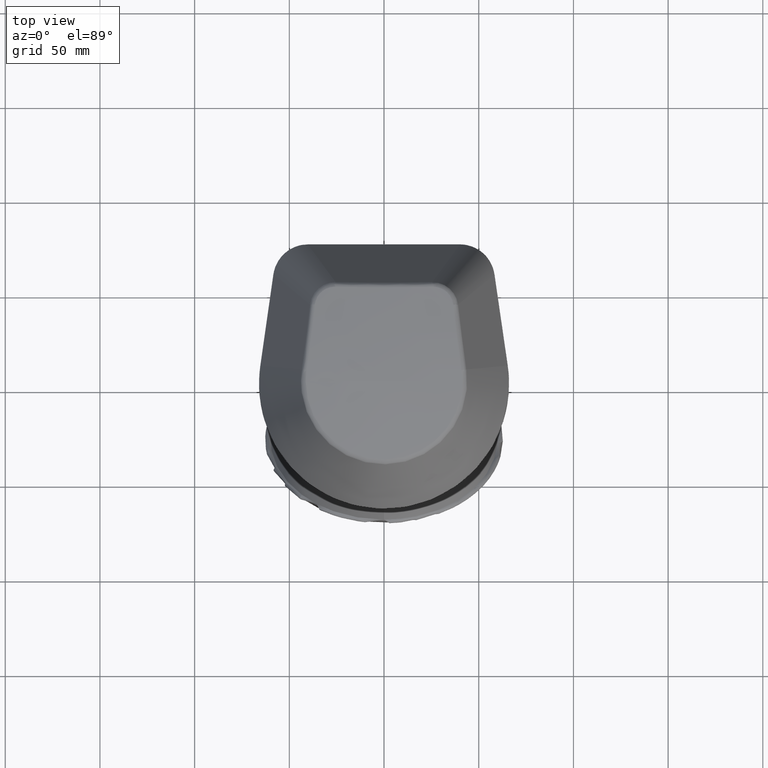
[diagram: clean part render]
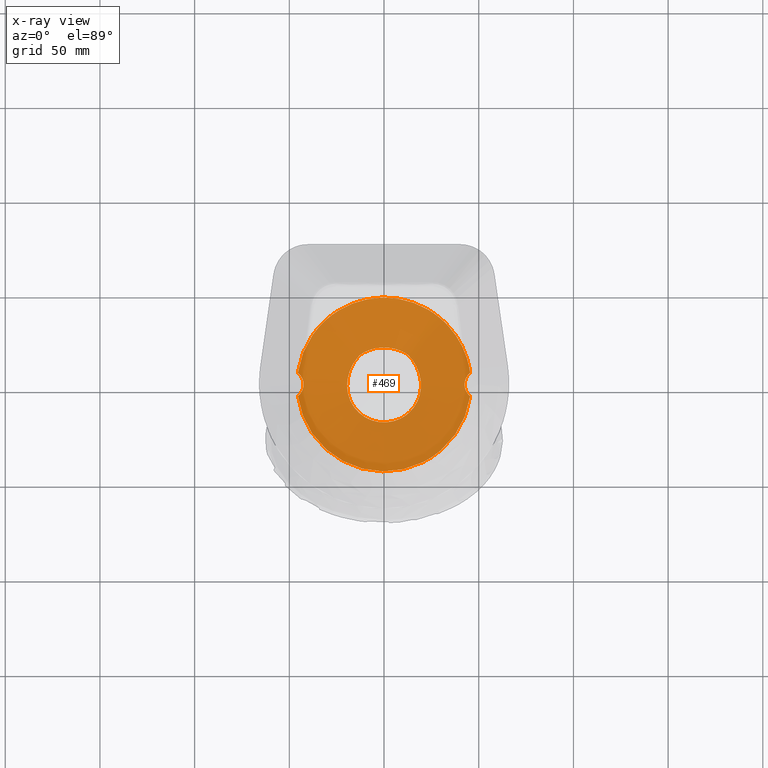
[diagram: x-ray — body ghosted, one internal face saturated and labeled with its STEP entity id]
A machine part, top view, then the same camera in x-ray: the body is ghosted and one INTERNAL B-rep face — a face not visible from any outside direction — is saturated and labeled: STEP entity #469.
In plain terms, the highlighted face is a freeform B-spline surface patch.
Its self-contained STEP definition (entity closure, byte-faithful):
#64=FACE_BOUND('',#867,.T.);
#65=FACE_BOUND('',#868,.T.);
#469=ADVANCED_FACE('',(#64,#65),#639,.T.);
#639=B_SPLINE_SURFACE_WITH_KNOTS('',3,3,((#7428,#7429,#7430,#7431,#7432,
#7433,#7434,#7435,#7436,#7437,#7438,#7439,#7440,#7441,#7442,#7443,#7444,
#7445,#7446,#7447,#7448,#7449,#7450,#7451,#7452,#7453,#7454,#7455,#7456,
#7457,#7458,#7459,#7460,#7461,#7462,#7463,#7464,#7465,#7466,#7467,#7468,
#7469,#7470,#7471,#7472,#7473,#7474,#7475,#7476,#7477,#7478,#7479,#7480,
#7481,#7482,#7483,#7484,#7485,#7486,#7487,#7488,#7489,#7490,#7491,#7492,
#7493,#7494,#7495,#7496,#7497,#7498,#7499,#7500,#7501,#7502,#7503,#7504,
#7505,#7506,#7507,#7508,#7509,#7510,#7511,#7512,#7513,#7514,#7515,#7516,
#7517,#7518,#7519,#7520,#7521,#7522,#7523,#7524,#7525,#7526,#7527,#7528,
#7529,#7530,#7531,#7532,#7533,#7534,#7535,#7536,#7537,#7538,#7539,#7540,
#7541,#7542,#7543,#7544,#7545,#7546,#7547,#7548,#7549,#7550,#7551,#7552,
#7553,#7554,#7555,#7556,#7557,#7558,#7559,#7560,#7561,#7562,#7563,#7564,
#7565,#7566,#7567,#7568,#7569,#7570,#7571,#7572,#7573,#7574,#7575,#7576,
#7577,#7578,#7579,#7580,#7581,#7582,#7583,#7584,#7585,#7586,#7587,#7588,
#7589,#7590,#7591,#7592,#7593,#7594,#7595,#7596,#7597,#7598,#7599,#7600,
#7601,#7602,#7603,#7604,#7605,#7606,#7607,#7608,#7609,#7610,#7611,#7612,
#7613,#7614,#7615,#7616,#7617,#7618,#7619,#7620,#7621,#7622,#7623,#7624,
#7625,#7626,#7627,#7628,#7629,#7630,#7631,#7632,#7633,#7634,#7635,#7636,
#7637,#7638,#7639,#7640,#7641,#7642,#7643,#7644,#7645,#7646,#7647,#7648,
#7649,#7650,#7651,#7652,#7653,#7654,#7655,#7656),(#7657,#7658,#7659,#7660,
#7661,#7662,#7663,#7664,#7665,#7666,#7667,#7668,#7669,#7670,#7671,#7672,
#7673,#7674,#7675,#7676,#7677,#7678,#7679,#7680,#7681,#7682,#7683,#7684,
#7685,#7686,#7687,#7688,#7689,#7690,#7691,#7692,#7693,#7694,#7695,#7696,
#7697,#7698,#7699,#7700,#7701,#7702,#7703,#7704,#7705,#7706,#7707,#7708,
#7709,#7710,#7711,#7712,#7713,#7714,#7715,#7716,#7717,#7718,#7719,#7720,
#7721,#7722,#7723,#7724,#7725,#7726,#7727,#7728,#7729,#7730,#7731,#7732,
#7733,#7734,#7735,#7736,#7737,#7738,#7739,#7740,#7741,#7742,#7743,#7744,
#7745,#7746,#7747,#7748,#7749,#7750,#7751,#7752,#7753,#7754,#7755,#7756,
#7757,#7758,#7759,#7760,#7761,#7762,#7763,#7764,#7765,#7766,#7767,#7768,
#7769,#7770,#7771,#7772,#7773,#7774,#7775,#7776,#7777,#7778,#7779,#7780,
#7781,#7782,#7783,#7784,#7785,#7786,#7787,#7788,#7789,#7790,#7791,#7792,
#7793,#7794,#7795,#7796,#7797,#7798,#7799,#7800,#7801,#7802,#7803,#7804,
#7805,#7806,#7807,#7808,#7809,#7810,#7811,#7812,#7813,#7814,#7815,#7816,
#7817,#7818,#7819,#7820,#7821,#7822,#7823,#7824,#7825,#7826,#7827,#7828,
#7829,#7830,#7831,#7832,#7833,#7834,#7835,#7836,#7837,#7838,#7839,#7840,
#7841,#7842,#7843,#7844,#7845,#7846,#7847,#7848,#7849,#7850,#7851,#7852,
#7853,#7854,#7855,#7856,#7857,#7858,#7859,#7860,#7861,#7862,#7863,#7864,
#7865,#7866,#7867,#7868,#7869,#7870,#7871,#7872,#7873,#7874,#7875,#7876,
#7877,#7878,#7879,#7880,#7881,#7882,#7883,#7884,#7885),(#7886,#7887,#7888,
#7889,#7890,#7891,#7892,#7893,#7894,#7895,#7896,#7897,#7898,#7899,#7900,
#7901,#7902,#7903,#7904,#7905,#7906,#7907,#7908,#7909,#7910,#7911,#7912,
#7913,#7914,#7915,#7916,#7917,#7918,#7919,#7920,#7921,#7922,#7923,#7924,
#7925,#7926,#7927,#7928,#7929,#7930,#7931,#7932,#7933,#7934,#7935,#7936,
#7937,#7938,#7939,#7940,#7941,#7942,#7943,#7944,#7945,#7946,#7947,#7948,
#7949,#7950,#7951,#7952,#7953,#7954,#7955,#7956,#7957,#7958,#7959,#7960,
#7961,#7962,#7963,#7964,#7965,#7966,#7967,#7968,#7969,#7970,#7971,#7972,
#7973,#7974,#7975,#7976,#7977,#7978,#7979,#7980,#7981,#7982,#7983,#7984,
#7985,#7986,#7987,#7988,#7989,#7990,#7991,#7992,#7993,#7994,#7995,#7996,
#7997,#7998,#7999,#8000,#8001,#8002,#8003,#8004,#8005,#8006,#8007,#8008,
#8009,#8010,#8011,#8012,#8013,#8014,#8015,#8016,#8017,#8018,#8019,#8020,
#8021,#8022,#8023,#8024,#8025,#8026,#8027,#8028,#8029,#8030,#8031,#8032,
#8033,#8034,#8035,#8036,#8037,#8038,#8039,#8040,#8041,#8042,#8043,#8044,
#8045,#8046,#8047,#8048,#8049,#8050,#8051,#8052,#8053,#8054,#8055,#8056,
#8057,#8058,#8059,#8060,#8061,#8062,#8063,#8064,#8065,#8066,#8067,#8068,
#8069,#8070,#8071,#8072,#8073,#8074,#8075,#8076,#8077,#8078,#8079,#8080,
#8081,#8082,#8083,#8084,#8085,#8086,#8087,#8088,#8089,#8090,#8091,#8092,
#8093,#8094,#8095,#8096,#8097,#8098,#8099,#8100,#8101,#8102,#8103,#8104,
#8105,#8106,#8107,#8108,#8109,#8110,#8111,#8112,#8113,#8114),(#8115,#8116,
#8117,#8118,#8119,#8120,#8121,#8122,#8123,#8124,#8125,#8126,#8127,#8128,
#8129,#8130,#8131,#8132,#8133,#8134,#8135,#8136,#8137,#8138,#8139,#8140,
#8141,#8142,#8143,#8144,#8145,#8146,#8147,#8148,#8149,#8150,#8151,#8152,
#8153,#8154,#8155,#8156,#8157,#8158,#8159,#8160,#8161,#8162,#8163,#8164,
#8165,#8166,#8167,#8168,#8169,#8170,#8171,#8172,#8173,#8174,#8175,#8176,
#8177,#8178,#8179,#8180,#8181,#8182,#8183,#8184,#8185,#8186,#8187,#8188,
#8189,#8190,#8191,#8192,#8193,#8194,#8195,#8196,#8197,#8198,#8199,#8200,
#8201,#8202,#8203,#8204,#8205,#8206,#8207,#8208,#8209,#8210,#8211,#8212,
#8213,#8214,#8215,#8216,#8217,#8218,#8219,#8220,#8221,#8222,#8223,#8224,
#8225,#8226,#8227,#8228,#8229,#8230,#8231,#8232,#8233,#8234,#8235,#8236,
#8237,#8238,#8239,#8240,#8241,#8242,#8243,#8244,#8245,#8246,#8247,#8248,
#8249,#8250,#8251,#8252,#8253,#8254,#8255,#8256,#8257,#8258,#8259,#8260,
#8261,#8262,#8263,#8264,#8265,#8266,#8267,#8268,#8269,#8270,#8271,#8272,
#8273,#8274,#8275,#8276,#8277,#8278,#8279,#8280,#8281,#8282,#8283,#8284,
#8285,#8286,#8287,#8288,#8289,#8290,#8291,#8292,#8293,#8294,#8295,#8296,
#8297,#8298,#8299,#8300,#8301,#8302,#8303,#8304,#8305,#8306,#8307,#8308,
#8309,#8310,#8311,#8312,#8313,#8314,#8315,#8316,#8317,#8318,#8319,#8320,
#8321,#8322,#8323,#8324,#8325,#8326,#8327,#8328,#8329,#8330,#8331,#8332,
#8333,#8334,#8335,#8336,#8337,#8338,#8339,#8340,#8341,#8342,#8343)),.UNSPECIFIED.,
 .F.,.T.,.F.,(4,4),(1,3,3,3,3,3,3,3,3,3,3,3,3,3,3,3,3,3,3,3,3,3,3,3,3,3,
3,3,3,3,3,3,3,3,3,3,3,3,3,3,3,3,3,3,3,3,3,3,3,3,3,3,3,3,3,3,3,3,3,3,3,3,
3,3,3,3,3,3,3,3,3,3,3,3,3,3,3,3,1),(0.,1.),(-0.015625,0.,0.015625,0.03125,
0.046875,0.0625,0.078125,0.09375,0.109375,0.125,0.140625,0.15625,0.171875,
0.1875,0.19140625,0.193359375,0.1953125,0.203125,0.21875,0.25,0.28125,0.3125,
0.3203125,0.32421875,0.328125,0.34375,0.359375,0.375,0.3828125,0.390625,
0.3984375,0.40625,0.4140625,0.41796875,0.4189453125,0.419921875,0.421875,
0.4375,0.5,0.5625,0.578125,0.580078125,0.58203125,0.583984375,0.5859375,
0.59375,0.6015625,0.609375,0.6171875,0.625,0.640625,0.65625,0.6640625,0.671875,
0.67578125,0.677734375,0.6796875,0.6875,0.71875,0.75,0.78125,0.796875,0.8046875,
0.806640625,0.80859375,0.8125,0.828125,0.84375,0.859375,0.875,0.890625,0.90625,
0.921875,0.9375,0.953125,0.96875,0.984375,1.,1.015625),.UNSPECIFIED.);
#867=EDGE_LOOP('',(#1463));
#868=EDGE_LOOP('',(#1464,#1465,#1466,#1467));
#1463=ORIENTED_EDGE('',*,*,#2591,.T.);
#1464=ORIENTED_EDGE('',*,*,#2593,.F.);
#1465=ORIENTED_EDGE('',*,*,#2587,.F.);
#1466=ORIENTED_EDGE('',*,*,#2594,.F.);
#1467=ORIENTED_EDGE('',*,*,#2583,.F.);
#2276=VERTEX_POINT('',#6114);
#2277=VERTEX_POINT('',#6173);
#2280=VERTEX_POINT('',#6179);
#2281=VERTEX_POINT('',#6268);
#2284=VERTEX_POINT('',#6420);
#2583=EDGE_CURVE('',#2276,#2277,#2983,.T.);
#2587=EDGE_CURVE('',#2280,#2281,#2984,.T.);
#2591=EDGE_CURVE('',#2284,#2284,#2985,.T.);
#2593=EDGE_CURVE('',#2281,#2276,#2987,.T.);
#2594=EDGE_CURVE('',#2277,#2280,#2988,.T.);
#2983=B_SPLINE_CURVE_WITH_KNOTS('',3,(#6115,#6116,#6117,#6118,#6119,#6120,
#6121,#6122,#6123,#6124,#6125,#6126,#6127,#6128,#6129,#6130,#6131,#6132,
#6133,#6134,#6135,#6136,#6137,#6138,#6139,#6140,#6141,#6142,#6143,#6144,
#6145,#6146,#6147,#6148,#6149,#6150,#6151,#6152,#6153,#6154,#6155,#6156,
#6157,#6158,#6159,#6160,#6161,#6162,#6163,#6164,#6165,#6166,#6167,#6168,
#6169,#6170,#6171,#6172),.UNSPECIFIED.,.F.,.F.,(4,2,2,2,2,2,2,2,2,2,2,2,
2,2,2,2,2,2,2,2,2,2,2,2,2,2,2,2,4),(0.,0.0625000000000001,0.0781250000000001,
0.0937500000000002,0.125,0.1875,0.25,0.281250000000001,0.296875000000001,
0.312500000000001,0.375000000000001,0.406250000000001,0.437500000000001,
0.5,0.53125,0.546875000000001,0.562500000000001,0.625000000000001,0.656250000000001,
0.687500000000001,0.750000000000001,0.765625000000001,0.781250000000001,
0.812500000000001,0.875,0.890625,0.90625,0.9375,1.),.UNSPECIFIED.);
#2984=B_SPLINE_CURVE_WITH_KNOTS('',3,(#6180,#6181,#6182,#6183,#6184,#6185,
#6186,#6187,#6188,#6189,#6190,#6191,#6192,#6193,#6194,#6195,#6196,#6197,
#6198,#6199,#6200,#6201,#6202,#6203,#6204,#6205,#6206,#6207,#6208,#6209,
#6210,#6211,#6212,#6213,#6214,#6215,#6216,#6217,#6218,#6219,#6220,#6221,
#6222,#6223,#6224,#6225,#6226,#6227,#6228,#6229,#6230,#6231,#6232,#6233,
#6234,#6235,#6236,#6237,#6238,#6239,#6240,#6241,#6242,#6243,#6244,#6245,
#6246,#6247,#6248,#6249,#6250,#6251,#6252,#6253,#6254,#6255,#6256,#6257,
#6258,#6259,#6260,#6261,#6262,#6263,#6264,#6265,#6266,#6267),.UNSPECIFIED.,
 .F.,.F.,(4,2,2,2,2,2,2,2,2,2,2,2,2,2,2,2,2,2,2,2,2,2,2,2,2,2,2,2,2,2,2,
2,2,2,2,2,2,2,2,2,2,2,2,4),(0.,0.03125,0.0468749999999999,0.0624999999999999,
0.125,0.140625,0.15625,0.1875,0.21875,0.234375,0.2421875,0.25,0.265625,0.28125,
0.3125,0.3203125,0.328125,0.34375,0.374999999999999,0.437499999999999,0.468749999999999,
0.484374999999999,0.499999999999999,0.562499999999999,0.578124999999999,
0.593749999999999,0.624999999999999,0.656249999999999,0.671874999999999,
0.679687499999999,0.687499999999999,0.703124999999999,0.718749999999999,
0.734374999999999,0.749999999999999,0.757812499999999,0.765624999999999,
0.781249999999999,0.812499999999999,0.843749999999999,0.874999999999999,
0.9375,0.96875,1.),.UNSPECIFIED.);
#2985=B_SPLINE_CURVE_WITH_KNOTS('',3,(#6275,#6276,#6277,#6278,#6279,#6280,
#6281,#6282,#6283,#6284,#6285,#6286,#6287,#6288,#6289,#6290,#6291,#6292,
#6293,#6294,#6295,#6296,#6297,#6298,#6299,#6300,#6301,#6302,#6303,#6304,
#6305,#6306,#6307,#6308,#6309,#6310,#6311,#6312,#6313,#6314,#6315,#6316,
#6317,#6318,#6319,#6320,#6321,#6322,#6323,#6324,#6325,#6326,#6327,#6328,
#6329,#6330,#6331,#6332,#6333,#6334,#6335,#6336,#6337,#6338,#6339,#6340,
#6341,#6342,#6343,#6344,#6345,#6346,#6347,#6348,#6349,#6350,#6351,#6352,
#6353,#6354,#6355,#6356,#6357,#6358,#6359,#6360,#6361,#6362,#6363,#6364,
#6365,#6366,#6367,#6368,#6369,#6370,#6371,#6372,#6373,#6374,#6375,#6376,
#6377,#6378,#6379,#6380,#6381,#6382,#6383,#6384,#6385,#6386,#6387,#6388,
#6389,#6390,#6391,#6392,#6393,#6394,#6395,#6396,#6397,#6398,#6399,#6400,
#6401,#6402,#6403,#6404,#6405,#6406,#6407,#6408,#6409,#6410,#6411,#6412,
#6413,#6414,#6415,#6416,#6417,#6418,#6419),.UNSPECIFIED.,.T.,.F.,(2,2,2,
2,2,2,2,2,2,2,2,2,2,2,2,2,2,2,2,2,2,2,2,2,2,2,2,2,2,2,2,2,2,2,2,2,2,2,2,
2,2,2,2,2,2,2,2,2,2,2,2,2,2,2,2,2,2,2,2,2,2,2,2,2,2,2,2,2,2,2,2,1,2,2,2),
(-0.001953125,0.,0.0312500000000003,0.0468750000000004,0.0625000000000006,
0.0937500000000008,0.109375000000001,0.125000000000001,0.156250000000001,
0.164062500000001,0.171875000000001,0.187500000000002,0.203125000000002,
0.210937500000002,0.218750000000002,0.250000000000002,0.265625000000002,
0.281250000000002,0.312500000000003,0.328125000000003,0.343750000000003,
0.359375000000003,0.375000000000003,0.390625000000003,0.406250000000004,
0.437500000000004,0.453125000000004,0.457031250000004,0.458984375000004,
0.460937500000004,0.468750000000004,0.476562500000004,0.484375000000004,
0.492187500000004,0.494140625000004,0.496093750000004,0.500000000000004,
0.515625000000004,0.531250000000004,0.562500000000004,0.578125000000004,
0.593750000000004,0.625000000000004,0.640625000000004,0.656250000000004,
0.660156250000004,0.662109375000004,0.664062500000004,0.671875000000004,
0.679687500000004,0.687500000000003,0.695312500000003,0.697265625000003,
0.699218750000003,0.703125000000003,0.718750000000003,0.734375000000003,
0.750000000000003,0.781250000000002,0.796875000000002,0.812500000000002,
0.843750000000001,0.875000000000001,0.890625000000001,0.906250000000001,
0.9375,0.9453125,0.953125,0.96875,0.984375,0.9921875,0.99609375,0.998046875,
1.,1.03125),.UNSPECIFIED.);
#2987=B_SPLINE_CURVE_WITH_KNOTS('',3,(#7372,#7373,#7374,#7375,#7376,#7377,
#7378,#7379,#7380,#7381,#7382,#7383,#7384,#7385,#7386,#7387,#7388,#7389,
#7390,#7391,#7392,#7393,#7394,#7395,#7396,#7397,#7398,#7399),.UNSPECIFIED.,
 .F.,.F.,(4,2,2,2,2,2,2,2,2,2,2,2,2,4),(0.,0.0624999999999998,0.125,0.1875,
0.249999999999999,0.375,0.4375,0.5,0.5625,0.625,0.750000000000001,0.8125,
0.875,1.),.UNSPECIFIED.);
#2988=B_SPLINE_CURVE_WITH_KNOTS('',3,(#7400,#7401,#7402,#7403,#7404,#7405,
#7406,#7407,#7408,#7409,#7410,#7411,#7412,#7413,#7414,#7415,#7416,#7417,
#7418,#7419,#7420,#7421,#7422,#7423,#7424,#7425,#7426,#7427),.UNSPECIFIED.,
 .F.,.F.,(4,2,2,2,2,2,2,2,2,2,2,2,2,4),(0.,0.0625000000000003,0.125000000000001,
0.187500000000001,0.250000000000001,0.375000000000001,0.437500000000001,
0.500000000000001,0.562500000000001,0.625000000000001,0.750000000000001,
0.812500000000001,0.875,1.),.UNSPECIFIED.);
#6114=CARTESIAN_POINT('',(45.4758415841584,-6.07376929913499,101.334409686833));
#6115=CARTESIAN_POINT('',(45.4758415841584,-6.07376929913501,101.334409686838));
#6116=CARTESIAN_POINT('',(45.1051881940306,-8.78127252346453,101.334412375557));
#6117=CARTESIAN_POINT('',(44.4957751605113,-11.4481142916959,101.334400107842));
#6118=CARTESIAN_POINT('',(43.4262623998874,-14.729256390485,101.334408668243));
#6119=CARTESIAN_POINT('',(43.1963394753734,-15.3840378659202,101.334409243081));
#6120=CARTESIAN_POINT('',(42.7097294633264,-16.6757068481271,101.334406380241));
#6121=CARTESIAN_POINT('',(42.4526715636675,-17.3139196383702,101.334404368575));
#6122=CARTESIAN_POINT('',(41.6409233457,-19.2060720614513,101.334409492182));
#6123=CARTESIAN_POINT('',(41.045738880071,-20.4375702877278,101.334404544613));
#6124=CARTESIAN_POINT('',(39.1005526147113,-24.043598204345,101.334408309828));
#6125=CARTESIAN_POINT('',(37.5922479139351,-26.3303981856461,101.334417484739));
#6126=CARTESIAN_POINT('',(34.1343248278151,-30.6594270071851,101.334400549583));
#6127=CARTESIAN_POINT('',(32.2366231960234,-32.6364637050259,101.334412170309));
#6128=CARTESIAN_POINT('',(29.1495520859319,-35.3302816626109,101.33441249788));
#6129=CARTESIAN_POINT('',(28.0800798027917,-36.1827832996699,101.334406402685));
#6130=CARTESIAN_POINT('',(26.4143016328077,-37.3923717319397,101.334412609727));
#6131=CARTESIAN_POINT('',(25.8487653593447,-37.784023397411,101.334412600674));
#6132=CARTESIAN_POINT('',(24.6967967670812,-38.5438532746204,101.334408945152));
#6133=CARTESIAN_POINT('',(24.1090286606142,-38.9127694865816,101.33440707213));
#6134=CARTESIAN_POINT('',(21.1446631400903,-40.6812507347238,101.334417336244));
#6135=CARTESIAN_POINT('',(18.678158799872,-41.8648971338007,101.334416855919));
#6136=CARTESIAN_POINT('',(14.8403003782845,-43.3044017180086,101.334403747978));
#6137=CARTESIAN_POINT('',(13.5378563876239,-43.7278997236715,101.334413907205));
#6138=CARTESIAN_POINT('',(10.8856956470566,-44.4598937549549,101.334408882803));
#6139=CARTESIAN_POINT('',(9.53001366903815,-44.7690539015151,101.334408275392));
#6140=CARTESIAN_POINT('',(5.4661335478564,-45.5046458918423,101.334414156393));
#6141=CARTESIAN_POINT('',(2.74384738086897,-45.7476660909454,101.334412347976));
#6142=CARTESIAN_POINT('',(-1.35874552648249,-45.7484513435663,101.33440084248));
#6143=CARTESIAN_POINT('',(-2.72948951796816,-45.6877267713974,101.334409520774));
#6144=CARTESIAN_POINT('',(-4.79055342112143,-45.5027236048439,101.334402949988));
#6145=CARTESIAN_POINT('',(-5.48006052928187,-45.4251126737321,101.334403068164));
#6146=CARTESIAN_POINT('',(-6.84871325674098,-45.2396216846041,101.334408509878));
#6147=CARTESIAN_POINT('',(-7.52861442867407,-45.1317569504194,101.334410669713));
#6148=CARTESIAN_POINT('',(-10.9063740938968,-44.5181345960106,101.334405583539));
#6149=CARTESIAN_POINT('',(-13.5395113791294,-43.7912486048284,101.334396609131));
#6150=CARTESIAN_POINT('',(-17.3864794197819,-42.3499023501114,101.334411684532));
#6151=CARTESIAN_POINT('',(-18.6515787696607,-41.810607864736,101.334403933318));
#6152=CARTESIAN_POINT('',(-21.1462036060721,-40.6104761928236,101.334406899154));
#6153=CARTESIAN_POINT('',(-22.3605220135636,-39.9567328536772,101.334410145618));
#6154=CARTESIAN_POINT('',(-25.8901608614828,-37.8484805604591,101.33439814784));
#6155=CARTESIAN_POINT('',(-28.1008279060787,-36.2443624468491,101.334413466783));
#6156=CARTESIAN_POINT('',(-30.6855825629984,-33.9901809203984,101.334411487162));
#6157=CARTESIAN_POINT('',(-31.1935376768229,-33.5267996824808,101.334407896627));
#6158=CARTESIAN_POINT('',(-32.1911674281447,-32.5745445438207,101.334406391431));
#6159=CARTESIAN_POINT('',(-32.6820392122089,-32.0843739342837,101.334410508745));
#6160=CARTESIAN_POINT('',(-34.1149943333488,-30.5871887369309,101.334415532029));
#6161=CARTESIAN_POINT('',(-35.0187278016942,-29.5529202724765,101.334408306785));
#6162=CARTESIAN_POINT('',(-37.579644809103,-26.3447823397971,101.3344202033));
#6163=CARTESIAN_POINT('',(-39.0877236103518,-24.0664064463024,101.33441328221));
#6164=CARTESIAN_POINT('',(-40.7201716419049,-21.0413557043018,101.334412714226));
#6165=CARTESIAN_POINT('',(-41.0339339254483,-20.4274250680311,101.334416319527));
#6166=CARTESIAN_POINT('',(-41.6355176822763,-19.1813820704247,101.334417954343));
#6167=CARTESIAN_POINT('',(-41.9222540949465,-18.5513697338913,101.334415817045));
#6168=CARTESIAN_POINT('',(-42.7356417989618,-16.6521226342941,101.334410942937));
#6169=CARTESIAN_POINT('',(-43.2178237462276,-15.369075098717,101.334419048804));
#6170=CARTESIAN_POINT('',(-44.4882662184775,-11.4704436350116,101.334411487109));
#6171=CARTESIAN_POINT('',(-45.1018348648489,-8.80576750938238,101.334422562246));
#6172=CARTESIAN_POINT('',(-45.4758415841584,-6.07376929913499,101.334416416188));
#6173=CARTESIAN_POINT('',(-45.4758415841584,-6.07376929913499,101.334416416185));
#6179=CARTESIAN_POINT('',(-45.4758415841585,6.37738843218097,101.334426126061));
#6180=CARTESIAN_POINT('',(-45.4758415841584,6.37738843218096,101.334426126061));
#6181=CARTESIAN_POINT('',(-45.2902191657906,7.73330020750696,101.334659550921));
#6182=CARTESIAN_POINT('',(-45.0434867259874,9.08529746665617,101.323771460935));
#6183=CARTESIAN_POINT('',(-44.578780876148,11.1071973378615,101.278563102681));
#6184=CARTESIAN_POINT('',(-44.4086649441104,11.7773625596052,101.259304700221));
#6185=CARTESIAN_POINT('',(-44.0404187383713,13.1026598035588,101.212771807911));
#6186=CARTESIAN_POINT('',(-43.842020163531,13.75897742766,101.185471903721));
#6187=CARTESIAN_POINT('',(-42.7798357489463,17.0094381311561,101.029162934234));
#6188=CARTESIAN_POINT('',(-41.7071325577176,19.5109350398974,100.841208757784));
#6189=CARTESIAN_POINT('',(-40.0894204619218,22.5150390371809,100.528115942175));
#6190=CARTESIAN_POINT('',(-39.7519332215206,23.1096757564846,100.461561127943));
#6191=CARTESIAN_POINT('',(-39.0486954811773,24.2864153445899,100.320473493832));
#6192=CARTESIAN_POINT('',(-38.6819439995744,24.8699812967584,100.245731677847));
#6193=CARTESIAN_POINT('',(-37.5477396858039,26.5877787292671,100.011234607291));
#6194=CARTESIAN_POINT('',(-36.7463473024964,27.6900656837004,99.841246497351));
#6195=CARTESIAN_POINT('',(-35.0561771497583,29.8117831621906,99.474907832839));
#6196=CARTESIAN_POINT('',(-34.1673911821377,30.8312060012049,99.2785553112443));
#6197=CARTESIAN_POINT('',(-32.7693866463153,32.2988746778468,98.9644714347028));
#6198=CARTESIAN_POINT('',(-32.2925562165573,32.7778464612901,98.8566050047763));
#6199=CARTESIAN_POINT('',(-31.5610490653618,33.480844198633,98.6896631461262));
#6200=CARTESIAN_POINT('',(-31.3145137186991,33.7126026904734,98.6331189997924));
#6201=CARTESIAN_POINT('',(-30.813897904434,34.1728221981644,98.539874632696));
#6202=CARTESIAN_POINT('',(-30.5601247747807,34.4009848157845,98.4998841955347));
#6203=CARTESIAN_POINT('',(-29.7886214789229,35.0791191738289,98.3957832193451));
#6204=CARTESIAN_POINT('',(-29.2604305730909,35.5229606939005,98.3472418945061));
#6205=CARTESIAN_POINT('',(-28.178264769563,36.3909668963349,98.2821435094604));
#6206=CARTESIAN_POINT('',(-27.6276947305952,36.812433559567,98.2660225261087));
#6207=CARTESIAN_POINT('',(-25.9475807455876,38.0392286419423,98.2622232486134));
#6208=CARTESIAN_POINT('',(-24.7864406060428,38.8085958751118,98.3160647947674));
#6209=CARTESIAN_POINT('',(-23.3068393814309,39.6957128374412,98.4821517034798));
#6210=CARTESIAN_POINT('',(-23.0098078412745,39.8692741392677,98.5230181033896));
#6211=CARTESIAN_POINT('',(-22.4121480585509,40.2095662233954,98.6043897746836));
#6212=CARTESIAN_POINT('',(-22.1114640181055,40.3763217649239,98.6443102627247));
#6213=CARTESIAN_POINT('',(-21.2038317160509,40.8664311544795,98.7615614853038));
#6214=CARTESIAN_POINT('',(-20.5913150525199,41.179627828206,98.8364819989954));
#6215=CARTESIAN_POINT('',(-18.7313955604755,42.0784279369602,99.051500442927));
#6216=CARTESIAN_POINT('',(-17.4572999855382,42.6246687735052,99.1821750823211));
#6217=CARTESIAN_POINT('',(-13.5962794657948,44.0780608599445,99.5298638551698));
#6218=CARTESIAN_POINT('',(-10.9605722912335,44.808189913028,99.7045325826283));
#6219=CARTESIAN_POINT('',(-6.91534898945456,45.5485832514978,99.8816588549441));
#6220=CARTESIAN_POINT('',(-5.55157424838447,45.7358997362046,99.9264716043062));
#6221=CARTESIAN_POINT('',(-3.48211908099719,45.9247782272294,99.9716587378106));
#6222=CARTESIAN_POINT('',(-2.78904350647594,45.9722000328738,99.9830040632325));
#6223=CARTESIAN_POINT('',(-1.40926290742798,46.0353678878608,99.9981169041715));
#6224=CARTESIAN_POINT('',(-0.720804069065588,46.0512919018936,100.001926995794));
#6225=CARTESIAN_POINT('',(2.7144430315618,46.0538181674984,100.002534107234));
#6226=CARTESIAN_POINT('',(5.44025829862215,45.8109799416011,99.9444414817906));
#6227=CARTESIAN_POINT('',(8.81958461956495,45.2017437256796,99.798695308321));
#6228=CARTESIAN_POINT('',(9.49404223686574,45.0644970965509,99.7658620537576));
#6229=CARTESIAN_POINT('',(10.8401000031061,44.7587436809404,99.6927171429098));
#6230=CARTESIAN_POINT('',(11.5129769556529,44.5898576418307,99.6523147589049));
#6231=CARTESIAN_POINT('',(13.5143227129114,44.0390298260732,99.5205408564382));
#6232=CARTESIAN_POINT('',(14.8271031275343,43.6129384193497,99.4186073871308));
#6233=CARTESIAN_POINT('',(17.4101768466607,42.6441435867265,99.1868433718287));
#6234=CARTESIAN_POINT('',(18.6833185382796,42.0999027461118,99.0566450623261));
#6235=CARTESIAN_POINT('',(20.5454301377159,41.2026320760393,98.8419915237137));
#6236=CARTESIAN_POINT('',(21.1585283902142,40.8899942531435,98.7672094466469));
#6237=CARTESIAN_POINT('',(22.0668241023531,40.4008285338964,98.6501622550325));
#6238=CARTESIAN_POINT('',(22.3677047235013,40.2343993455311,98.6104235589639));
#6239=CARTESIAN_POINT('',(22.965663532043,39.8948154483505,98.5291128282195));
#6240=CARTESIAN_POINT('',(23.2627530443743,39.7216621152718,98.4876316842403));
#6241=CARTESIAN_POINT('',(24.150594014795,39.1906933680047,98.3864766046282));
#6242=CARTESIAN_POINT('',(24.7380224840263,38.8211825701723,98.339713524028));
#6243=CARTESIAN_POINT('',(25.8940440807079,38.0568045679989,98.2786045606666));
#6244=CARTESIAN_POINT('',(26.4629336802386,37.661844467778,98.2642317617046));
#6245=CARTESIAN_POINT('',(27.5824947491358,36.8464353402241,98.2651532981238));
#6246=CARTESIAN_POINT('',(28.133166249251,36.4259865630976,98.280419091072));
#6247=CARTESIAN_POINT('',(29.2162224498846,35.559482544928,98.3436810533569));
#6248=CARTESIAN_POINT('',(29.7465278958699,35.1149998312566,98.391391711038));
#6249=CARTESIAN_POINT('',(30.5202031854407,34.4365707054948,98.4939350666223));
#6250=CARTESIAN_POINT('',(30.7747031302133,34.2082874999877,98.5333993013185));
#6251=CARTESIAN_POINT('',(31.2767893908659,33.7477689572704,98.6254021979198));
#6252=CARTESIAN_POINT('',(31.5240684823279,33.5158299273991,98.6811744423818));
#6253=CARTESIAN_POINT('',(32.2575640336542,32.8124671822616,98.8486566294143));
#6254=CARTESIAN_POINT('',(32.7357606453165,32.3331432959466,98.9568964930024));
#6255=CARTESIAN_POINT('',(34.1379669444646,30.8640591654466,99.2720322685031));
#6256=CARTESIAN_POINT('',(35.0296835814474,29.8432235979699,99.4690913136929));
#6257=CARTESIAN_POINT('',(36.7258258015465,27.7175948482375,99.8368544697591));
#6258=CARTESIAN_POINT('',(37.5305068858515,26.6124369860299,100.007604215917));
#6259=CARTESIAN_POINT('',(39.0483139858933,24.3165136905548,100.321523707374));
#6260=CARTESIAN_POINT('',(39.7509115619045,23.1417369109204,100.462518708058));
#6261=CARTESIAN_POINT('',(41.6940528815734,19.5389927430618,100.838815311841));
#6262=CARTESIAN_POINT('',(42.7712460845949,17.033231271917,101.027800072472));
#6263=CARTESIAN_POINT('',(44.052738007254,13.1153834051804,101.21649450236));
#6264=CARTESIAN_POINT('',(44.4248526464522,11.7769196806023,101.263541665189));
#6265=CARTESIAN_POINT('',(45.0424872875083,9.08965364538895,101.323670062326));
#6266=CARTESIAN_POINT('',(45.2896257456675,7.73763494971973,101.334751462067));
#6267=CARTESIAN_POINT('',(45.4758415841584,6.37738843218162,101.334425969202));
#6268=CARTESIAN_POINT('',(45.4758415841585,6.37738843218126,101.334425969202));
#6275=CARTESIAN_POINT('',(8.97949001622362,-17.6101209942812,94.3684061403219));
#6276=CARTESIAN_POINT('',(7.74795588692642,-18.2378790265624,94.3711478945274));
#6277=CARTESIAN_POINT('',(6.55000535123221,-18.7039814721133,94.3730311006498));
#6278=CARTESIAN_POINT('',(4.69743661730906,-19.2245358258934,94.3750421068042));
#6279=CARTESIAN_POINT('',(4.07060237514219,-19.3681668640999,94.3756091173699));
#6280=CARTESIAN_POINT('',(2.79779464586498,-19.5939969952768,94.3764517612909));
#6281=CARTESIAN_POINT('',(2.1499577745999,-19.6760198802468,94.3767316251063));
#6282=CARTESIAN_POINT('',(0.219736562120105,-19.8243151134755,94.377272784947));
#6283=CARTESIAN_POINT('',(-1.06257361295429,-19.7966292711327,94.3771593381882));
#6284=CARTESIAN_POINT('',(-2.97934198248747,-19.5669356195396,94.3763454536868));
#6285=CARTESIAN_POINT('',(-3.6195216457823,-19.458199592365,94.3759492758362));
#6286=CARTESIAN_POINT('',(-4.88673309115457,-19.1772169575694,94.3748573223296));
#6287=CARTESIAN_POINT('',(-5.50848767011369,-19.0065131696295,94.374203661331));
#6288=CARTESIAN_POINT('',(-7.33925731361423,-18.4064652938563,94.3718579338914));
#6289=CARTESIAN_POINT('',(-8.51388969520011,-17.8894692185261,94.3696620745454));
#6290=CARTESIAN_POINT('',(-9.92345671560732,-17.0935197778332,94.3661221304772));
#6291=CARTESIAN_POINT('',(-10.2031474504961,-16.9262730204743,94.3653688141889));
#6292=CARTESIAN_POINT('',(-10.7511066598571,-16.5796422830784,94.3637704150555));
#6293=CARTESIAN_POINT('',(-11.0196997421659,-16.4001116358313,94.3629195778104));
#6294=CARTESIAN_POINT('',(-11.8096529302254,-15.8432586700962,94.3602171545265));
#6295=CARTESIAN_POINT('',(-12.315274930995,-15.4477766899678,94.3582405434035));
#6296=CARTESIAN_POINT('',(-13.285185935752,-14.6091198910755,94.3539795014243));
#6297=CARTESIAN_POINT('',(-13.7494599143512,-14.1659278067113,94.3516810395407));
#6298=CARTESIAN_POINT('',(-14.4140735627845,-13.4644504574377,94.3478608382236));
#6299=CARTESIAN_POINT('',(-14.6303217234125,-13.2245211198099,94.3465308279341));
#6300=CARTESIAN_POINT('',(-15.0520919977604,-12.7322860720939,94.3437765530384));
#6301=CARTESIAN_POINT('',(-15.2578941890055,-12.4795441588982,94.342350758368));
#6302=CARTESIAN_POINT('',(-16.2486341579124,-11.1987315931358,94.3350832415301));
#6303=CARTESIAN_POINT('',(-16.9283502880928,-10.1098654333809,94.3286111854283));
#6304=CARTESIAN_POINT('',(-17.7834075460856,-8.38296977095796,94.3181495989));
#6305=CARTESIAN_POINT('',(-18.040928107667,-7.79169333481788,94.3145668233002));
#6306=CARTESIAN_POINT('',(-18.4988366887494,-6.57663695298059,94.3071153593475));
#6307=CARTESIAN_POINT('',(-18.6968270018924,-5.95865792244838,94.3032826172375));
#6308=CARTESIAN_POINT('',(-19.19510922983,-4.09367334142483,94.2918651273008));
#6309=CARTESIAN_POINT('',(-19.4034034725908,-2.82766625891429,94.2842105425462));
#6310=CARTESIAN_POINT('',(-19.5292943090387,-0.894497353782106,94.273049200984));
#6311=CARTESIAN_POINT('',(-19.5394320760857,-0.241482408090922,94.2693153800053));
#6312=CARTESIAN_POINT('',(-19.4966021402302,1.04967782183223,94.2623101334599));
#6313=CARTESIAN_POINT('',(-19.4436069282207,1.69032468664703,94.2589093194165));
#6314=CARTESIAN_POINT('',(-19.2766717669572,2.96210046466453,94.2524660822996));
#6315=CARTESIAN_POINT('',(-19.1642678702827,3.59347563349205,94.2498406292232));
#6316=CARTESIAN_POINT('',(-18.8931653673802,4.84872011155231,94.2263992108828));
#6317=CARTESIAN_POINT('',(-18.7325868251115,5.47232979679619,94.2078680402712));
#6318=CARTESIAN_POINT('',(-18.3595502634329,6.71123205124609,94.1567264532928));
#6319=CARTESIAN_POINT('',(-18.1477289437844,7.32358627338213,94.1241751841827));
#6320=CARTESIAN_POINT('',(-17.6790628780699,8.51832145585428,94.0459815357225));
#6321=CARTESIAN_POINT('',(-17.4215527465892,9.1030969064614,94.0002537236438));
#6322=CARTESIAN_POINT('',(-16.5803583931718,10.8201178246268,93.8434230551401));
#6323=CARTESIAN_POINT('',(-15.9283561454743,11.9152456529591,93.7127703939415));
#6324=CARTESIAN_POINT('',(-14.8060562511446,13.4795414091585,93.4755127074628));
#6325=CARTESIAN_POINT('',(-14.4081877696171,13.9870012756151,93.3895805091568));
#6326=CARTESIAN_POINT('',(-13.889505491682,14.5935059797269,93.2754530910534));
#6327=CARTESIAN_POINT('',(-13.7830021459232,14.7118549550517,93.2516866370416));
#6328=CARTESIAN_POINT('',(-13.6265056375305,14.8928710584505,93.2172835629668));
#6329=CARTESIAN_POINT('',(-13.5775033206714,14.9566528416509,93.2074764741952));
#6330=CARTESIAN_POINT('',(-13.4731204066005,15.0777708087981,93.188769464236));
#6331=CARTESIAN_POINT('',(-13.419691789069,15.1371395805175,93.1801056586898));
#6332=CARTESIAN_POINT('',(-13.1472297079075,15.4288889740741,93.1399460649756));
#6333=CARTESIAN_POINT('',(-12.9132582512365,15.6469743792393,93.1174278025828));
#6334=CARTESIAN_POINT('',(-12.424664850696,16.0635916346546,93.0865857115356));
#6335=CARTESIAN_POINT('',(-12.1696053711611,16.2616846357419,93.078352403316));
#6336=CARTESIAN_POINT('',(-11.6393928138249,16.6388021401604,93.0753357083776));
#6337=CARTESIAN_POINT('',(-11.3622428862572,16.818951539111,93.0806329193887));
#6338=CARTESIAN_POINT('',(-10.7958508089853,17.1510386933389,93.1063188218912));
#6339=CARTESIAN_POINT('',(-10.5073972620306,17.3031508080415,93.1264442364108));
#6340=CARTESIAN_POINT('',(-10.1382132890279,17.4703145092552,93.1642317802716));
#6341=CARTESIAN_POINT('',(-10.0657389477081,17.5066774986881,93.1732104378892));
#6342=CARTESIAN_POINT('',(-9.91980020045412,17.5772812649338,93.1901003250138));
#6343=CARTESIAN_POINT('',(-9.84667900996625,17.6122400781562,93.1984674543157));
#6344=CARTESIAN_POINT('',(-9.62679624379361,17.7159478185925,93.2232805565814));
#6345=CARTESIAN_POINT('',(-9.4795340977253,17.7835683555146,93.2394564381981));
#6346=CARTESIAN_POINT('',(-8.73984020278443,18.1140441946011,93.3185127624677));
#6347=CARTESIAN_POINT('',(-8.13727041169283,18.3540449937184,93.3759290657574));
#6348=CARTESIAN_POINT('',(-6.90986771335842,18.7838603733874,93.4787516603735));
#6349=CARTESIAN_POINT('',(-6.28237237000952,18.9743701192354,93.5243265436726));
#6350=CARTESIAN_POINT('',(-4.39012640230857,19.4618203209436,93.6409384440067));
#6351=CARTESIAN_POINT('',(-3.11509715134495,19.67627800211,93.6922440441674));
#6352=CARTESIAN_POINT('',(-1.18242331395394,19.8335728114695,93.72987530758));
#6353=CARTESIAN_POINT('',(-0.534800192100856,19.8582504212296,93.7357795289441));
#6354=CARTESIAN_POINT('',(0.76730464806404,19.851594842561,93.7341883366634));
#6355=CARTESIAN_POINT('',(1.42468413799735,19.8196658327308,93.7265503946347));
#6356=CARTESIAN_POINT('',(3.37128975001483,19.6397053123523,93.6834995186212));
#6357=CARTESIAN_POINT('',(4.64346513433364,19.4095512521156,93.628440171809));
#6358=CARTESIAN_POINT('',(6.51497114163796,18.9058834573324,93.5079482608106));
#6359=CARTESIAN_POINT('',(7.13266785392092,18.7115344312374,93.461454308411));
#6360=CARTESIAN_POINT('',(8.35565637401358,18.2693665943157,93.3556748478957));
#6361=CARTESIAN_POINT('',(8.96128523341656,18.0210129726127,93.2962702041443));
#6362=CARTESIAN_POINT('',(9.6982915155257,17.6826689496794,93.2153153793062));
#6363=CARTESIAN_POINT('',(9.84499346793461,17.6137928110059,93.1988458303908));
#6364=CARTESIAN_POINT('',(10.0634116697541,17.5076584484529,93.1734679151308));
#6365=CARTESIAN_POINT('',(10.1358995513772,17.4717578093139,93.1646051886056));
#6366=CARTESIAN_POINT('',(10.283371559519,17.404131567436,93.1492633316456));
#6367=CARTESIAN_POINT('',(10.3570143358104,17.3700694550825,93.1424633119144));
#6368=CARTESIAN_POINT('',(10.7210100871945,17.1920803600025,93.1108675745019));
#6369=CARTESIAN_POINT('',(11.0039394486707,17.0342091126616,93.0947446451338));
#6370=CARTESIAN_POINT('',(11.5566049111305,16.6938307811171,93.0764068042146));
#6371=CARTESIAN_POINT('',(11.82624272408,16.5111429101756,93.0742671717887));
#6372=CARTESIAN_POINT('',(12.3522295949679,16.1209715856075,93.0838050355416));
#6373=CARTESIAN_POINT('',(12.6098429162526,15.9125915531919,93.0955024239862));
#6374=CARTESIAN_POINT('',(13.1033719921193,15.4697871527853,93.1354745766955));
#6375=CARTESIAN_POINT('',(13.3373004798063,15.2394824930588,93.1634683665593));
#6376=CARTESIAN_POINT('',(13.5995102263611,14.9298163000222,93.2117267519717));
#6377=CARTESIAN_POINT('',(13.6489944137201,14.8656677907266,93.2221352245459));
#6378=CARTESIAN_POINT('',(13.7563652837763,14.7444430993236,93.245975721925));
#6379=CARTESIAN_POINT('',(13.8101372858499,14.6838985569902,93.2578935246733));
#6380=CARTESIAN_POINT('',(13.9695577307261,14.5006884113087,93.2930907534937));
#6381=CARTESIAN_POINT('',(14.0745466297093,14.3774758030539,93.3161868268173));
#6382=CARTESIAN_POINT('',(14.5926983839005,13.7557525448862,93.4296026444653));
#6383=CARTESIAN_POINT('',(14.9857927027266,13.2405387833964,93.5139522548968));
#6384=CARTESIAN_POINT('',(15.7290651509028,12.1743968044314,93.6699165647204));
#6385=CARTESIAN_POINT('',(16.0803361378559,11.6213006511213,93.7417300135989));
#6386=CARTESIAN_POINT('',(16.7330808298667,10.4890177398451,93.8711452701377));
#6387=CARTESIAN_POINT('',(17.0337742510585,9.91184887553265,93.9286181997182));
#6388=CARTESIAN_POINT('',(17.861539819678,8.14842891381198,94.0800984208707));
#6389=CARTESIAN_POINT('',(18.3143385672347,6.93028227408047,94.153180105616));
#6390=CARTESIAN_POINT('',(18.8461832132534,5.03978386167669,94.2212901559988));
#6391=CARTESIAN_POINT('',(18.9989290963572,4.39749794157996,94.2370273933971));
#6392=CARTESIAN_POINT('',(19.2501233295089,3.11352838479529,94.2540949029354));
#6393=CARTESIAN_POINT('',(19.3514930508497,2.46950754180592,94.2549187972703));
#6394=CARTESIAN_POINT('',(19.5562077494933,0.529407183093507,94.2649636728222));
#6395=CARTESIAN_POINT('',(19.5662850491317,-0.775302819338441,94.2722780634448));
#6396=CARTESIAN_POINT('',(19.3213110023286,-3.40222192434473,94.2876510099255));
#6397=CARTESIAN_POINT('',(19.0703390419556,-4.681077250406,94.2954230801904));
#6398=CARTESIAN_POINT('',(18.5080589262447,-6.54931532907353,94.3069284583551));
#6399=CARTESIAN_POINT('',(18.2894036628715,-7.16365108307844,94.3107243252671));
#6400=CARTESIAN_POINT('',(17.7875619566174,-8.37494426753075,94.3181039905609));
#6401=CARTESIAN_POINT('',(17.5032798280933,-8.97349564907638,94.321730919189));
#6402=CARTESIAN_POINT('',(16.572412297684,-10.7024572823687,94.3321797349131));
#6403=CARTESIAN_POINT('',(15.8433101784126,-11.7798154911637,94.3384180472718));
#6404=CARTESIAN_POINT('',(14.7975948509056,-13.0333224113871,94.3454639960151));
#6405=CARTESIAN_POINT('',(14.5816761171872,-13.2793234669928,94.3468365326978));
#6406=CARTESIAN_POINT('',(14.1359998989707,-13.7617256546349,94.3494869872389));
#6407=CARTESIAN_POINT('',(13.9055596122473,-13.9987460387159,94.3507649277406));
#6408=CARTESIAN_POINT('',(13.1996493975229,-14.6885077025485,94.3544011013278));
#6409=CARTESIAN_POINT('',(12.7090810431422,-15.1211085704021,94.3565917232887));
#6410=CARTESIAN_POINT('',(11.6893946125759,-15.9337033085851,94.3606573363169));
#6411=CARTESIAN_POINT('',(11.160266869191,-16.3136839979222,94.3625299194895));
#6412=CARTESIAN_POINT('',(10.3373516835211,-16.8437755093062,94.364994413095));
#6413=CARTESIAN_POINT('',(10.0581732235875,-17.0138222375606,94.3657646409663));
#6414=CARTESIAN_POINT('',(9.6320501825903,-17.2588548301606,94.3668591614606));
#6415=CARTESIAN_POINT('',(9.41714876800934,-17.3788603107204,94.3673910644956));
#6416=CARTESIAN_POINT('',(9.19946616761109,-17.4950704289062,94.3679019388369));
#6417=CARTESIAN_POINT('',(9.05372326287508,-17.5716961550653,94.3682380176671));
#6418=CARTESIAN_POINT('',(8.97949001622362,-17.6101209942812,94.3684061403219));
#6419=CARTESIAN_POINT('',(7.74795588692642,-18.2378790265624,94.3711478945274));
#6420=CARTESIAN_POINT('',(8.9070468321473,-17.6470479373566,94.368567419981));
#7372=CARTESIAN_POINT('',(45.4758415841586,6.3773884321808,101.334425969202));
#7373=CARTESIAN_POINT('',(45.2467085753033,6.19247381466022,101.266840803718));
#7374=CARTESIAN_POINT('',(45.0272300959598,5.9942988298073,101.201559263714));
#7375=CARTESIAN_POINT('',(44.614406045045,5.57819648707682,101.077918497974));
#7376=CARTESIAN_POINT('',(44.4199185239038,5.35936860444636,101.019208674106));
#7377=CARTESIAN_POINT('',(44.0548350624633,4.90006301567384,100.908249984092));
#7378=CARTESIAN_POINT('',(43.8842350330827,4.65958760864382,100.856005565155));
#7379=CARTESIAN_POINT('',(43.5678682660885,4.15605214136959,100.758554089923));
#7380=CARTESIAN_POINT('',(43.4222669145966,3.89267964326573,100.713395826906));
#7381=CARTESIAN_POINT('',(43.0350105038792,3.08908552562811,100.592733288382));
#7382=CARTESIAN_POINT('',(42.8377485945382,2.52893238112896,100.530477733661));
#7383=CARTESIAN_POINT('',(42.635955042907,1.65080899343259,100.466592716381));
#7384=CARTESIAN_POINT('',(42.5846813939915,1.35090410938578,100.450304239044));
#7385=CARTESIAN_POINT('',(42.5170820051786,0.754401173918734,100.428814504455));
#7386=CARTESIAN_POINT('',(42.5001951963921,0.455845627926679,100.423435624992));
#7387=CARTESIAN_POINT('',(42.4998081580059,-0.141865958081467,100.423315626544));
#7388=CARTESIAN_POINT('',(42.5163066844032,-0.44102197683729,100.428574326322));
#7389=CARTESIAN_POINT('',(42.5835286340213,-1.03994934699438,100.449950374375));
#7390=CARTESIAN_POINT('',(42.6345286961896,-1.33951472610342,100.466154645836));
#7391=CARTESIAN_POINT('',(42.8347970625117,-2.21534311855877,100.529563422098));
#7392=CARTESIAN_POINT('',(43.0313996153261,-2.77716642605068,100.591619008058));
#7393=CARTESIAN_POINT('',(43.4210393768156,-3.58691207504919,100.713016493551));
#7394=CARTESIAN_POINT('',(43.5660561419753,-3.84919325558772,100.757985792164));
#7395=CARTESIAN_POINT('',(43.8806562963466,-4.35062199227733,100.85489012429));
#7396=CARTESIAN_POINT('',(44.0508749652904,-4.59111870707702,100.907023654776));
#7397=CARTESIAN_POINT('',(44.5996568723363,-5.282551505688,101.073849825353));
#7398=CARTESIAN_POINT('',(45.0212484494041,-5.70690414923569,101.200394144777));
#7399=CARTESIAN_POINT('',(45.4758415841576,-6.07376929913441,101.334409686838));
#7400=CARTESIAN_POINT('',(-45.4758415841579,-6.07376929913456,101.334416416187));
#7401=CARTESIAN_POINT('',(-45.2467051380338,-5.88885190767384,101.266866016941));
#7402=CARTESIAN_POINT('',(-45.0272221242996,-5.69067218793756,101.201599641464));
#7403=CARTESIAN_POINT('',(-44.6143997679419,-5.27457050092141,101.077940383484));
#7404=CARTESIAN_POINT('',(-44.4199147967308,-5.05574504491043,101.019209874959));
#7405=CARTESIAN_POINT('',(-44.0548332441669,-4.596441332448,100.908237105314));
#7406=CARTESIAN_POINT('',(-43.8842334343046,-4.35596612844732,100.855993469437));
#7407=CARTESIAN_POINT('',(-43.567866857008,-3.85243056810573,100.758551543869));
#7408=CARTESIAN_POINT('',(-43.4222647366984,-3.58905646987819,100.713400537574));
#7409=CARTESIAN_POINT('',(-43.0350075731011,-2.78545935291162,100.592751607715));
#7410=CARTESIAN_POINT('',(-42.8377466445429,-2.2253062738147,100.530499152964));
#7411=CARTESIAN_POINT('',(-42.6359545034538,-1.34718675723832,100.466612186555));
#7412=CARTESIAN_POINT('',(-42.5846807981182,-1.04728122539465,100.450321818063));
#7413=CARTESIAN_POINT('',(-42.5170815823992,-0.450776803112435,100.428827627593));
#7414=CARTESIAN_POINT('',(-42.5001950043827,-0.152221075716131,100.423446246705));
#7415=CARTESIAN_POINT('',(-42.4998083434835,0.445489763891626,100.4233219331));
#7416=CARTESIAN_POINT('',(-42.516307019041,0.744644853038502,100.428578455083));
#7417=CARTESIAN_POINT('',(-42.583528802472,1.34356921924718,100.449950534759));
#7418=CARTESIAN_POINT('',(-42.6345291402172,1.64313638426297,100.466153261613));
#7419=CARTESIAN_POINT('',(-42.8347984969943,2.51896735846074,100.529559227102));
#7420=CARTESIAN_POINT('',(-43.0314014866831,3.08078958391998,100.591615183787));
#7421=CARTESIAN_POINT('',(-43.421038952513,3.89053025842002,100.713016504744));
#7422=CARTESIAN_POINT('',(-43.5660568760197,4.15281370497119,100.757988995275));
#7423=CARTESIAN_POINT('',(-43.8806577972944,4.65424337125065,100.854896266716));
#7424=CARTESIAN_POINT('',(-44.0508768044804,4.89474037725943,100.907029114033));
#7425=CARTESIAN_POINT('',(-44.5996601247653,5.586174296867,101.073841724074));
#7426=CARTESIAN_POINT('',(-45.0212559278529,6.01052931753012,101.200361429276));
#7427=CARTESIAN_POINT('',(-45.4758415841583,6.3773884321815,101.334426126061));
#7428=CARTESIAN_POINT('',(-2.63130394605917E-006,-45.9371229491803,101.38502896597));
#7429=CARTESIAN_POINT('',(-2.30921049759058,-45.9371467903022,101.385029031952));
#7430=CARTESIAN_POINT('',(-4.60782379399899,-45.7632054107757,101.385029000725));
#7431=CARTESIAN_POINT('',(-6.86913138443997,-45.4223437421103,101.385028921318));
#7432=CARTESIAN_POINT('',(-9.13043897488094,-45.0814820734448,101.385028841911));
#7433=CARTESIAN_POINT('',(-11.3544371303113,-44.5737915217216,101.385028844128));
#7434=CARTESIAN_POINT('',(-13.5169393450579,-43.9104267205835,101.385028900556));
#7435=CARTESIAN_POINT('',(-15.6794415598044,-43.2470619194454,101.385028956984));
#7436=CARTESIAN_POINT('',(-17.780349886758,-42.4280197790978,101.385028914701));
#7437=CARTESIAN_POINT('',(-19.7982561676157,-41.468119599285,101.385028907074));
#7438=CARTESIAN_POINT('',(-21.8161624484735,-40.5082194194722,101.385028899448));
#7439=CARTESIAN_POINT('',(-23.7511197223825,-39.4074618849672,101.385028909465));
#7440=CARTESIAN_POINT('',(-25.5850300379373,-38.1834766282791,101.385028826723));
#7441=CARTESIAN_POINT('',(-27.418940353492,-36.959491371591,101.385028743981));
#7442=CARTESIAN_POINT('',(-29.151825629614,-35.6123802018771,101.385028733088));
#7443=CARTESIAN_POINT('',(-30.7694220326025,-34.1618923622188,101.385028772341));
#7444=CARTESIAN_POINT('',(-32.387018435591,-32.7114045225605,101.385028811594));
#7445=CARTESIAN_POINT('',(-33.8892516139322,-31.1575767090199,101.385028757281));
#7446=CARTESIAN_POINT('',(-35.2657681015101,-29.5216377673006,101.385028739777));
#7447=CARTESIAN_POINT('',(-36.642284589088,-27.8856988255814,101.385028722273));
#7448=CARTESIAN_POINT('',(-37.8931329026016,-26.1676323022665,101.385028724861));
#7449=CARTESIAN_POINT('',(-39.0118283813457,-24.3892490910065,101.385028646578));
#7450=CARTESIAN_POINT('',(-40.1305238600898,-22.6108658797464,101.385028568295));
#7451=CARTESIAN_POINT('',(-41.1171302974477,-20.7722311812273,101.385028546989));
#7452=CARTESIAN_POINT('',(-41.9690924853316,-18.8949932192031,101.385028573262));
#7453=CARTESIAN_POINT('',(-42.8210546732155,-17.0177552571789,101.385028599536));
#7454=CARTESIAN_POINT('',(-43.5383360029524,-15.1019885282047,101.385028569641));
#7455=CARTESIAN_POINT('',(-44.122022976983,-13.1685851595746,101.38502854051));
#7456=CARTESIAN_POINT('',(-44.7057099510137,-11.2351817909444,101.385028511379));
#7457=CARTESIAN_POINT('',(-45.1558442191262,-9.28411280013666,101.385028500526));
#7458=CARTESIAN_POINT('',(-45.4767056283744,-7.3351358704277,101.385028477841));
#7459=CARTESIAN_POINT('',(-45.7975670376226,-5.38615894071875,101.385028455156));
#7460=CARTESIAN_POINT('',(-45.9892148992849,-3.43920492297124,101.385028427067));
#7461=CARTESIAN_POINT('',(-46.0588462856794,-1.5119825736132,101.385028454716));
#7462=CARTESIAN_POINT('',(-46.128477672074,0.415239775744837,101.385028482365));
#7463=CARTESIAN_POINT('',(-46.076148460135,2.32253658419972,101.385028616434));
#7464=CARTESIAN_POINT('',(-45.9112569502719,4.19462135790348,101.385028495626));
#7465=CARTESIAN_POINT('',(-45.8700340728062,4.66264255132942,101.385028465424));
#7466=CARTESIAN_POINT('',(-45.8217764050548,5.12851137147836,101.385028405896));
#7467=CARTESIAN_POINT('',(-45.7667561946158,5.59197628697288,101.385028594283));
#7468=CARTESIAN_POINT('',(-45.7392460893963,5.82370874472014,101.385028688477));
#7469=CARTESIAN_POINT('',(-45.7100636175929,6.05468649897956,101.385028864888));
#7470=CARTESIAN_POINT('',(-45.679035735674,6.2848688168805,101.385028496663));
#7471=CARTESIAN_POINT('',(-45.648007853755,6.51505113478144,101.385028128438));
#7472=CARTESIAN_POINT('',(-45.6148744705244,6.74511542002389,101.385028278693));
#7473=CARTESIAN_POINT('',(-45.581204127892,6.97681430001564,101.385028468219));
#7474=CARTESIAN_POINT('',(-45.4465227573623,7.90360981998268,101.385029226322));
#7475=CARTESIAN_POINT('',(-45.3124060239646,8.82520813882444,101.3850295804));
#7476=CARTESIAN_POINT('',(-45.1794499814966,9.73868844105504,101.385029200338));
#7477=CARTESIAN_POINT('',(-44.9135378965607,11.5656490455162,101.385028440214));
#7478=CARTESIAN_POINT('',(-44.6522399405778,13.3626546626889,101.385027381545));
#7479=CARTESIAN_POINT('',(-44.3964625052924,15.1214556259725,101.385027733328));
#7480=CARTESIAN_POINT('',(-43.8849076347216,18.6390575525398,101.385028436893));
#7481=CARTESIAN_POINT('',(-43.3954128976015,22.0041296519657,101.385028306278));
#7482=CARTESIAN_POINT('',(-42.9374966652172,25.1524665201415,101.385028195588));
#7483=CARTESIAN_POINT('',(-42.4795804328329,28.3008033883173,101.385028084898));
#7484=CARTESIAN_POINT('',(-42.0532447278814,31.2321529735261,101.385027647334));
#7485=CARTESIAN_POINT('',(-41.6676835548739,33.8830408438106,101.385028267645));
#7486=CARTESIAN_POINT('',(-41.2821223818663,36.5339287140952,101.385028887955));
#7487=CARTESIAN_POINT('',(-40.9376360513047,38.9025390774997,101.385025612098));
#7488=CARTESIAN_POINT('',(-40.6429050752349,40.9282904656331,101.385033690875));
#7489=CARTESIAN_POINT('',(-40.5692223312175,41.4347283126665,101.38503571057));
#7490=CARTESIAN_POINT('',(-40.4986108066739,41.9192003365876,101.385122002512));
#7491=CARTESIAN_POINT('',(-40.4310827904165,42.3817734443789,101.384917172218));
#7492=CARTESIAN_POINT('',(-40.3973187822878,42.6130599982745,101.384814757071));
#7493=CARTESIAN_POINT('',(-40.3690745475049,42.8346566902977,101.385700751027));
#7494=CARTESIAN_POINT('',(-40.3406483047381,43.0435750580766,101.387795805513));
#7495=CARTESIAN_POINT('',(-40.3122220619714,43.2524934258556,101.389890859999));
#7496=CARTESIAN_POINT('',(-40.2758277288019,43.4562115078775,101.391503946323));
#7497=CARTESIAN_POINT('',(-40.2342308298294,43.6548203667587,101.392907098326));
#7498=CARTESIAN_POINT('',(-40.0678432339394,44.4492558022832,101.398519706338));
#7499=CARTESIAN_POINT('',(-39.8255333957783,45.1526041322559,101.402164314038));
#7500=CARTESIAN_POINT('',(-39.5324239985319,45.7959034597639,101.404810436135));
#7501=CARTESIAN_POINT('',(-39.2393146012856,46.439202787272,101.407456558231));
#7502=CARTESIAN_POINT('',(-38.8963685313188,47.022681437114,101.409270883907));
#7503=CARTESIAN_POINT('',(-38.4973495265864,47.5738249700484,101.4105945885));
#7504=CARTESIAN_POINT('',(-38.098330521854,48.1249685029829,101.411918293093));
#7505=CARTESIAN_POINT('',(-37.6439039593371,48.6433991608151,101.412817981983));
#7506=CARTESIAN_POINT('',(-37.1044449340175,49.1390833459569,101.413292738389));
#7507=CARTESIAN_POINT('',(-36.8347154213577,49.3869254385278,101.413530116592));
#7508=CARTESIAN_POINT('',(-36.5439767337768,49.6283487782258,101.413669677187));
#7509=CARTESIAN_POINT('',(-36.2266088972838,49.8619435879617,101.413682351108));
#7510=CARTESIAN_POINT('',(-35.9092410607909,50.0955383976976,101.413695025028));
#7511=CARTESIAN_POINT('',(-35.5658221137097,50.3208831264381,101.413581560616));
#7512=CARTESIAN_POINT('',(-35.1903180886617,50.5341322583414,101.41330654411));
#7513=CARTESIAN_POINT('',(-34.8148140636137,50.7473813902448,101.413031527604));
#7514=CARTESIAN_POINT('',(-34.4079862427102,50.9480071361694,101.412579642785));
#7515=CARTESIAN_POINT('',(-33.9640530213265,51.1284555556791,101.411887439194));
#7516=CARTESIAN_POINT('',(-33.5201197999429,51.3089039751888,101.411195235603));
#7517=CARTESIAN_POINT('',(-33.0398360560174,51.4686796684281,101.410230912068));
#7518=CARTESIAN_POINT('',(-32.5191000783067,51.5959970960033,101.408871873496));
#7519=CARTESIAN_POINT('',(-31.998364100596,51.7233145235784,101.407512834924));
#7520=CARTESIAN_POINT('',(-31.4379552118318,51.8176917508986,101.405708947983));
#7521=CARTESIAN_POINT('',(-30.8372461580477,51.8627775709168,101.403188373349));
#7522=CARTESIAN_POINT('',(-30.5368916311557,51.885320480926,101.401928086032));
#7523=CARTESIAN_POINT('',(-30.2275782993367,51.894655105478,101.400370395941));
#7524=CARTESIAN_POINT('',(-29.9078520514358,51.889609274233,101.398675845932));
#7525=CARTESIAN_POINT('',(-29.8279204894605,51.8883478164218,101.398252208429));
#7526=CARTESIAN_POINT('',(-29.7443102620736,51.8879825822128,101.398218914525));
#7527=CARTESIAN_POINT('',(-29.6595504059152,51.888097795078,101.398257783199));
#7528=CARTESIAN_POINT('',(-29.5747905497569,51.8882130079432,101.398296651874));
#7529=CARTESIAN_POINT('',(-29.4895529055573,51.8883107052224,101.398311674314));
#7530=CARTESIAN_POINT('',(-29.403873803612,51.8882999257377,101.398304485938));
#7531=CARTESIAN_POINT('',(-29.2325155997214,51.8882783667682,101.398290109186));
#7532=CARTESIAN_POINT('',(-29.0586279804815,51.8882297306716,101.398284035523));
#7533=CARTESIAN_POINT('',(-28.8822679162656,51.8882176966068,101.398285351761));
#7534=CARTESIAN_POINT('',(-27.4713874025385,51.8881214240883,101.398295881668));
#7535=CARTESIAN_POINT('',(-25.9058349450313,51.8882115100588,101.398291016518));
#7536=CARTESIAN_POINT('',(-24.2171636621069,51.888215854557,101.398291194669));
#7537=CARTESIAN_POINT('',(-17.4624785304092,51.88823323255,101.398291907275));
#7538=CARTESIAN_POINT('',(-8.73145862769168,51.8882418585278,101.398291081738));
#7539=CARTESIAN_POINT('',(-0.000126312902552913,51.8882126764601,101.398291081739));
#7540=CARTESIAN_POINT('',(8.73120600188657,51.8881834943925,101.39829108174));
#7541=CARTESIAN_POINT('',(17.4622961611699,51.8881828776334,101.398291070532));
#7542=CARTESIAN_POINT('',(24.2171075427531,51.888179939511,101.398291039718));
#7543=CARTESIAN_POINT('',(25.9058103881489,51.8881792049804,101.398291032015));
#7544=CARTESIAN_POINT('',(27.4724422638397,51.8884460808693,101.398221464863));
#7545=CARTESIAN_POINT('',(28.8820671810355,51.8882648095156,101.398314555097));
#7546=CARTESIAN_POINT('',(29.058270295685,51.8882421505964,101.398326191376));
#7547=CARTESIAN_POINT('',(29.2321992541827,51.8880580798792,101.398332130088));
#7548=CARTESIAN_POINT('',(29.4046509191059,51.8877811271005,101.398208790468));
#7549=CARTESIAN_POINT('',(29.5771025840292,51.8875041743217,101.398085450848));
#7550=CARTESIAN_POINT('',(29.7452224971369,51.8888687164012,101.398188628607));
#7551=CARTESIAN_POINT('',(29.9067576339003,51.8900655210436,101.398808774207));
#7552=CARTESIAN_POINT('',(30.0682927706636,51.8912623256861,101.399428919806));
#7553=CARTESIAN_POINT('',(30.2253922424492,51.8907768632871,101.400286105281));
#7554=CARTESIAN_POINT('',(30.380058632589,51.8864591190875,101.401072323373));
#7555=CARTESIAN_POINT('',(30.5347250227288,51.8821413748879,101.401858541466));
#7556=CARTESIAN_POINT('',(30.6870883934663,51.8740926425231,101.402560349638));
#7557=CARTESIAN_POINT('',(30.8372035111601,51.8628212454004,101.403191465353));
#7558=CARTESIAN_POINT('',(31.4376639819354,51.8177356569092,101.405715928212));
#7559=CARTESIAN_POINT('',(31.9984247320866,51.7231938463329,101.407515172239));
#7560=CARTESIAN_POINT('',(32.5193399095171,51.5958140330972,101.408871974612));
#7561=CARTESIAN_POINT('',(33.0402550869475,51.4684342198615,101.410228776986));
#7562=CARTESIAN_POINT('',(33.5205168761994,51.308716872347,101.411194077618));
#7563=CARTESIAN_POINT('',(33.9643997925729,51.1283014050668,101.411887209342));
#7564=CARTESIAN_POINT('',(34.4082827089465,50.9478859377866,101.412580341067));
#7565=CARTESIAN_POINT('',(34.8150557452738,50.747252021926,101.413032209099));
#7566=CARTESIAN_POINT('',(35.190568561333,50.5339634246635,101.413306974174));
#7567=CARTESIAN_POINT('',(35.5660813773921,50.320674827401,101.413581739249));
#7568=CARTESIAN_POINT('',(35.9095636251578,50.0952654842947,101.413695013435));
#7569=CARTESIAN_POINT('',(36.2269449869693,49.8616485332436,101.413682295301));
#7570=CARTESIAN_POINT('',(36.5443263487808,49.6280315821925,101.413669577167));
#7571=CARTESIAN_POINT('',(36.8350269050945,49.3866301214862,101.413529962218));
#7572=CARTESIAN_POINT('',(37.1047613911459,49.1387672256411,101.413292491545));
#7573=CARTESIAN_POINT('',(37.6442303632489,48.643041433951,101.412817550197));
#7574=CARTESIAN_POINT('',(38.0985880870358,48.1245787023838,101.41191522761));
#7575=CARTESIAN_POINT('',(38.4976500750505,47.5733587745373,101.410593860458));
#7576=CARTESIAN_POINT('',(38.8967120630652,47.0221388466909,101.409272493307));
#7577=CARTESIAN_POINT('',(39.2395167042684,46.4386483505334,101.407445504837));
#7578=CARTESIAN_POINT('',(39.5326661720446,45.7952346197996,101.404807500185));
#7579=CARTESIAN_POINT('',(39.6792409059327,45.4735277544326,101.403488497859));
#7580=CARTESIAN_POINT('',(39.8124559432832,45.1371910440811,101.401894688508));
#7581=CARTESIAN_POINT('',(39.9305828392854,44.7815695127922,101.399976529204));
#7582=CARTESIAN_POINT('',(40.0487097352877,44.4259479815034,101.398058369901));
#7583=CARTESIAN_POINT('',(40.1512144198561,44.0515435796442,101.395739176048));
#7584=CARTESIAN_POINT('',(40.2343623663857,43.6542451399273,101.392911340939));
#7585=CARTESIAN_POINT('',(40.2759363396505,43.4555959200688,101.391497423384));
#7586=CARTESIAN_POINT('',(40.3119940342061,43.2518903174044,101.389831798805));
#7587=CARTESIAN_POINT('',(40.3409335620295,43.0426888499514,101.387834101765));
#7588=CARTESIAN_POINT('',(40.3554033259411,42.938088116225,101.386835253245));
#7589=CARTESIAN_POINT('',(40.3694307626593,42.8307600076213,101.386038614344));
#7590=CARTESIAN_POINT('',(40.3838543252058,42.7206887007183,101.385484340599));
#7591=CARTESIAN_POINT('',(40.3982778877524,42.6106173938153,101.384930066853));
#7592=CARTESIAN_POINT('',(40.4144765496442,42.4965831464531,101.384903778244));
#7593=CARTESIAN_POINT('',(40.4313596163721,42.3809029526358,101.384945135702));
#7594=CARTESIAN_POINT('',(40.498891883284,41.9181821773669,101.385110565531));
#7595=CARTESIAN_POINT('',(40.5693430464066,41.433850852599,101.385019137407));
#7596=CARTESIAN_POINT('',(40.6429654944893,40.9275591691897,101.385022609768));
#7597=CARTESIAN_POINT('',(40.9374552868199,38.9023924355526,101.385036499212));
#7598=CARTESIAN_POINT('',(41.2822079504915,36.5333872936506,101.385030704755));
#7599=CARTESIAN_POINT('',(41.6677663308022,33.882706428263,101.385029211407));
#7600=CARTESIAN_POINT('',(42.0533247111128,31.2320255628755,101.385027718058));
#7601=CARTESIAN_POINT('',(42.4796817640921,28.3003944131307,101.385027871952));
#7602=CARTESIAN_POINT('',(42.9375888352168,25.1520703094135,101.385028162854));
#7603=CARTESIAN_POINT('',(43.3954959063415,22.0037462056962,101.385028453756));
#7604=CARTESIAN_POINT('',(43.8849444974271,18.638734672846,101.38502850626));
#7605=CARTESIAN_POINT('',(44.3965765615464,15.1212343840427,101.385028531085));
#7606=CARTESIAN_POINT('',(44.6523925936061,13.3624842396411,101.385028543497));
#7607=CARTESIAN_POINT('',(44.9137510080986,11.5656371917619,101.385028539795));
#7608=CARTESIAN_POINT('',(45.179482075987,9.73871362286056,101.385028538755));
#7609=CARTESIAN_POINT('',(45.3123476099312,8.82525183840986,101.385028538235));
#7610=CARTESIAN_POINT('',(45.4466797776291,7.9040878857526,101.385028712047));
#7611=CARTESIAN_POINT('',(45.5811702734192,6.97693959026632,101.385028280838));
#7612=CARTESIAN_POINT('',(45.6147928973667,6.74515251639475,101.385028173036));
#7613=CARTESIAN_POINT('',(45.6480246440049,6.51483619443441,101.385028048474));
#7614=CARTESIAN_POINT('',(45.6790724811434,6.28479514636918,101.385028557189));
#7615=CARTESIAN_POINT('',(45.710120318282,6.05475409830395,101.385029065904));
#7616=CARTESIAN_POINT('',(45.7392448010523,5.8238197368593,101.385028715435));
#7617=CARTESIAN_POINT('',(45.7667309940669,5.59205007173643,101.385028546242));
#7618=CARTESIAN_POINT('',(45.8217033800962,5.12851074149068,101.385028207857));
#7619=CARTESIAN_POINT('',(45.8700047056353,4.66262264083041,101.385028379485));
#7620=CARTESIAN_POINT('',(45.9112547741003,4.19462062491273,101.385028489094));
#7621=CARTESIAN_POINT('',(46.0762550479603,2.32261256124203,101.385028927528));
#7622=CARTESIAN_POINT('',(46.128505814977,0.415326837439182,101.385028562441));
#7623=CARTESIAN_POINT('',(46.058870059409,-1.51188378034732,101.385028510201));
#7624=CARTESIAN_POINT('',(45.9892343038409,-3.43909439813382,101.385028457962));
#7625=CARTESIAN_POINT('',(45.7975996030984,-5.38607331918033,101.385028513767));
#7626=CARTESIAN_POINT('',(45.4767488318539,-7.33506964536952,101.385028565427));
#7627=CARTESIAN_POINT('',(45.1558980606094,-9.28406597155872,101.385028617087));
#7628=CARTESIAN_POINT('',(44.7057810741839,-11.2350769435525,101.38502863303));
#7629=CARTESIAN_POINT('',(44.1221028818231,-13.168454930286,101.385028647295));
#7630=CARTESIAN_POINT('',(43.5384246894623,-15.1018329170195,101.385028661561));
#7631=CARTESIAN_POINT('',(42.8211445003602,-17.0176159314129,101.385028685704));
#7632=CARTESIAN_POINT('',(41.969186400081,-18.8948606637657,101.38502865774));
#7633=CARTESIAN_POINT('',(41.1172282998018,-20.7721053961186,101.385028629777));
#7634=CARTESIAN_POINT('',(40.130622159244,-22.6107378781841,101.38502862946));
#7635=CARTESIAN_POINT('',(39.0119246508541,-24.3891228222811,101.385028685751));
#7636=CARTESIAN_POINT('',(37.8932271424642,-26.1675077663781,101.385028742042));
#7637=CARTESIAN_POINT('',(36.642385278063,-27.8855918660354,101.385028763219));
#7638=CARTESIAN_POINT('',(35.2658703071885,-29.5215345638181,101.385028772093));
#7639=CARTESIAN_POINT('',(33.8893553363139,-31.1574772616009,101.385028780966));
#7640=CARTESIAN_POINT('',(32.3871117816,-32.7113038625309,101.385028793347));
#7641=CARTESIAN_POINT('',(30.7695144472657,-34.1618053235659,101.385028763812));
#7642=CARTESIAN_POINT('',(29.1519171129314,-35.6123067846009,101.385028734277));
#7643=CARTESIAN_POINT('',(27.4190338934875,-36.9594234191367,101.385028745387));
#7644=CARTESIAN_POINT('',(25.5851151609799,-38.1834118917484,101.385028808611));
#7645=CARTESIAN_POINT('',(23.7511964284723,-39.4074003643601,101.385028871836));
#7646=CARTESIAN_POINT('',(21.8162209362057,-40.5081801056851,101.385028881042));
#7647=CARTESIAN_POINT('',(19.7983233786328,-41.4680840066352,101.385028898089));
#7648=CARTESIAN_POINT('',(17.7804258210599,-42.4279879075853,101.385028915135));
#7649=CARTESIAN_POINT('',(15.6795409203548,-43.2470183330064,101.385028933397));
#7650=CARTESIAN_POINT('',(13.51701384612,-43.9103953634432,101.385028878218));
#7651=CARTESIAN_POINT('',(11.3544867718852,-44.5737723938799,101.385028823038));
#7652=CARTESIAN_POINT('',(9.13045982976825,-45.0814793311799,101.385028845401));
#7653=CARTESIAN_POINT('',(6.86914831507132,-45.4223376352106,101.38502891166));
#7654=CARTESIAN_POINT('',(4.6078368003744,-45.7631959392414,101.385028977919));
#7655=CARTESIAN_POINT('',(2.30920523498268,-45.9370991080585,101.385028899988));
#7656=CARTESIAN_POINT('',(-2.63130394605917E-006,-45.9371229491803,101.38502896597));
#7657=CARTESIAN_POINT('',(-3.23109873617834E-006,-35.4192031334847,98.5667609726255));
#7658=CARTESIAN_POINT('',(-1.7822195293108,-35.4192215899464,98.5667610386075));
#7659=CARTESIAN_POINT('',(-3.5562721821075,-35.2849757356674,98.5667610066739));
#7660=CARTESIAN_POINT('',(-5.30153082086653,-35.0219014326346,98.5667609259533));
#7661=CARTESIAN_POINT('',(-7.04678945962556,-34.7588271296017,98.5667608452327));
#7662=CARTESIAN_POINT('',(-8.76324861902549,-34.3669967433608,98.5667608455294));
#7663=CARTESIAN_POINT('',(-10.4322501441222,-33.8550172718412,98.566760899531));
#7664=CARTESIAN_POINT('',(-12.101251669219,-33.3430378003216,98.5667609535326));
#7665=CARTESIAN_POINT('',(-13.7227158635959,-32.7109068571805,98.5667609083171));
#7666=CARTESIAN_POINT('',(-15.2801114164373,-31.9700675627643,98.5667608973514));
#7667=CARTESIAN_POINT('',(-16.8375069692787,-31.2292282683481,98.5667608863857));
#7668=CARTESIAN_POINT('',(-18.3308922399711,-30.3796727826947,98.5667608926583));
#7669=CARTESIAN_POINT('',(-19.7462888716371,-29.4350111349764,98.5667608058659));
#7670=CARTESIAN_POINT('',(-21.161685503303,-28.4903494872581,98.5667607190735));
#7671=CARTESIAN_POINT('',(-22.4991090494157,-27.4506625703402,98.5667607038245));
#7672=CARTESIAN_POINT('',(-23.7475566194926,-26.3311880736464,98.5667607385158));
#7673=CARTESIAN_POINT('',(-24.9960041895695,-25.2117135769526,98.5667607732072));
#7674=CARTESIAN_POINT('',(-26.1554151476339,-24.0124814008275,98.5667607141273));
#7675=CARTESIAN_POINT('',(-27.2177942189373,-22.74988315906,98.5667606917516));
#7676=CARTESIAN_POINT('',(-28.2801732902406,-21.4872849172924,98.5667606693759));
#7677=CARTESIAN_POINT('',(-29.2455685925488,-20.1612950860076,98.5667606669876));
#7678=CARTESIAN_POINT('',(-30.1089682497819,-18.7887539471185,98.5667605837229));
#7679=CARTESIAN_POINT('',(-30.9723679070149,-17.4162128082294,98.5667605004581));
#7680=CARTESIAN_POINT('',(-31.7338209540599,-15.9971728587376,98.5667604741655));
#7681=CARTESIAN_POINT('',(-32.3913583554531,-14.5483361437079,98.5667604955486));
#7682=CARTESIAN_POINT('',(-33.0488957568463,-13.0994994286782,98.5667605169318));
#7683=CARTESIAN_POINT('',(-33.6024871046909,-11.6209262566391,98.5667604822421));
#7684=CARTESIAN_POINT('',(-34.0529698083689,-10.1287483595125,98.5667604485122));
#7685=CARTESIAN_POINT('',(-34.5034525120469,-8.63657046238592,98.5667604147822));
#7686=CARTESIAN_POINT('',(-34.8508633028525,-7.13074970341222,98.5667603995259));
#7687=CARTESIAN_POINT('',(-35.0985013866862,-5.6265459744501,98.5667603727344));
#7688=CARTESIAN_POINT('',(-35.3461394705198,-4.12234224548797,98.5667603459429));
#7689=CARTESIAN_POINT('',(-35.4940512704881,-2.61970395788681,98.5667603140434));
#7690=CARTESIAN_POINT('',(-35.5477922564814,-1.13228899725166,98.5667603382786));
#7691=CARTESIAN_POINT('',(-35.6015332424746,0.355125963383498,98.5667603625138));
#7692=CARTESIAN_POINT('',(-35.5611456199829,1.82716213401789,98.5667604935653));
#7693=CARTESIAN_POINT('',(-35.4338844834089,3.27201187707575,98.5667603702377));
#7694=CARTESIAN_POINT('',(-35.4020691992654,3.63322431284022,98.5667603394058));
#7695=CARTESIAN_POINT('',(-35.3648237427471,3.99278446400703,98.5667602792786));
#7696=CARTESIAN_POINT('',(-35.3223580489268,4.35049728700655,98.5667604670965));
#7697=CARTESIAN_POINT('',(-35.3011252020166,4.52935369850631,98.5667605610054));
#7698=CARTESIAN_POINT('',(-35.2786055648687,4.70759455064015,98.5667607371398));
#7699=CARTESIAN_POINT('',(-35.2546661630662,4.88518818268957,98.5667603686454));
#7700=CARTESIAN_POINT('',(-35.2307267612637,5.06278181473898,98.566760000151));
#7701=CARTESIAN_POINT('',(-35.2051458502687,5.24041369497603,98.5667601501427));
#7702=CARTESIAN_POINT('',(-35.1790799965536,5.41978420935814,98.5667603394089));
#7703=CARTESIAN_POINT('',(-35.074816581693,6.13726626688657,98.5667610964738));
#7704=CARTESIAN_POINT('',(-34.970948202445,6.85101189134722,98.5667614496301));
#7705=CARTESIAN_POINT('',(-34.8679958811644,7.55834810845313,98.5667610687561));
#7706=CARTESIAN_POINT('',(-34.6620912386032,8.97302054266493,98.5667603070081));
#7707=CARTESIAN_POINT('',(-34.4597600329243,10.3644922029095,98.5667592471502));
#7708=CARTESIAN_POINT('',(-34.261705621737,11.7263747300996,98.5667595980989));
#7709=CARTESIAN_POINT('',(-33.8655967993623,14.4501397844798,98.5667602999963));
#7710=CARTESIAN_POINT('',(-33.4865683294936,17.0558016266465,98.5667601691339));
#7711=CARTESIAN_POINT('',(-33.1319920358776,19.4936390274497,98.5667600589799));
#7712=CARTESIAN_POINT('',(-32.7774157422615,21.9314764282528,98.5667599488259));
#7713=CARTESIAN_POINT('',(-32.4472927159172,24.2012954559051,98.5667595125825));
#7714=CARTESIAN_POINT('',(-32.1487435610709,26.2539443694948,98.5667601343529));
#7715=CARTESIAN_POINT('',(-31.8501944062245,28.3065932830845,98.5667607561234));
#7716=CARTESIAN_POINT('',(-31.5834465989674,30.1406718789272,98.5667574818702));
#7717=CARTESIAN_POINT('',(-31.3552370703121,31.7092538399133,98.5667655617162));
#7718=CARTESIAN_POINT('',(-31.2981846881483,32.1013993301598,98.5667675816777));
#7719=CARTESIAN_POINT('',(-31.2435944195563,32.4764496901932,98.5668538738578));
#7720=CARTESIAN_POINT('',(-31.1911010472601,32.8348435696317,98.5666490437767));
#7721=CARTESIAN_POINT('',(-31.164854361112,33.014040509351,98.5665466287362));
#7722=CARTESIAN_POINT('',(-31.143824505108,33.1847534124766,98.5674326227825));
#7723=CARTESIAN_POINT('',(-31.1240378549125,33.3442730225025,98.5695276773453));
#7724=CARTESIAN_POINT('',(-31.104251204717,33.5037926325285,98.5716227319082));
#7725=CARTESIAN_POINT('',(-31.077930303009,33.6596825787742,98.5732358183063));
#7726=CARTESIAN_POINT('',(-31.0474151284438,33.8117983927919,98.5746389703796));
#7727=CARTESIAN_POINT('',(-30.9253544301831,34.4202616488623,98.5802515786724));
#7728=CARTESIAN_POINT('',(-30.7436612364751,34.9593376448129,98.5838961865804));
#7729=CARTESIAN_POINT('',(-30.5218752779162,35.4527887099551,98.5865423088161));
#7730=CARTESIAN_POINT('',(-30.3000893193572,35.9462397750974,98.5891884310517));
#7731=CARTESIAN_POINT('',(-30.0393274190793,36.3939084929209,98.5910027567985));
#7732=CARTESIAN_POINT('',(-29.7349429074741,36.8168589674279,98.5923264614069));
#7733=CARTESIAN_POINT('',(-29.4305583958689,37.239809441935,98.5936501660152));
#7734=CARTESIAN_POINT('',(-29.0833554549969,37.6375122781931,98.594549854866));
#7735=CARTESIAN_POINT('',(-28.6704418638816,38.0176634166951,98.59502461119));
#7736=CARTESIAN_POINT('',(-28.463985068324,38.2077389859461,98.5952619893521));
#7737=CARTESIAN_POINT('',(-28.2414123599922,38.3927699868049,98.5954015498959));
#7738=CARTESIAN_POINT('',(-27.9982866244314,38.5717380306274,98.5954142237562));
#7739=CARTESIAN_POINT('',(-27.7551608888707,38.75070607445,98.5954268976165));
#7740=CARTESIAN_POINT('',(-27.4920601644046,38.9231896102028,98.5953134331353));
#7741=CARTESIAN_POINT('',(-27.2042290863521,39.0862842678876,98.5950384165531));
#7742=CARTESIAN_POINT('',(-26.9163980082996,39.2493789255724,98.5947633999708));
#7743=CARTESIAN_POINT('',(-26.6045978587713,39.4025569160479,98.5943115150694));
#7744=CARTESIAN_POINT('',(-26.2642812391982,39.5400402554636,98.5936193113905));
#7745=CARTESIAN_POINT('',(-25.923964619625,39.6775235948794,98.5929271077116));
#7746=CARTESIAN_POINT('',(-25.5558864079443,39.7988168833806,98.5919627840834));
#7747=CARTESIAN_POINT('',(-25.1568414745702,39.8948495289729,98.5906037454162));
#7748=CARTESIAN_POINT('',(-24.7577965411961,39.9908821745652,98.589244706749));
#7749=CARTESIAN_POINT('',(-24.3285642088585,40.0611722426589,98.5874408197109));
#7750=CARTESIAN_POINT('',(-23.8687222571905,40.0930801831065,98.5849202449789));
#7751=CARTESIAN_POINT('',(-23.6388012813565,40.1090341533303,98.5836599576129));
#7752=CARTESIAN_POINT('',(-23.4023122899608,40.1145851561921,98.5821022674734));
#7753=CARTESIAN_POINT('',(-23.1577336543796,40.1090542781293,98.5804077174153));
#7754=CARTESIAN_POINT('',(-23.0965889954843,40.1076715586136,98.5799840799008));
#7755=CARTESIAN_POINT('',(-23.0319011980254,40.1073608733235,98.5799507859828));
#7756=CARTESIAN_POINT('',(-22.9662013488652,40.107486702423,98.579989654644));
#7757=CARTESIAN_POINT('',(-22.900501499705,40.1076125315226,98.5800285233053));
#7758=CARTESIAN_POINT('',(-22.8344731076616,40.1077023877711,98.5800435457314));
#7759=CARTESIAN_POINT('',(-22.7681423380872,40.1076872561734,98.5800363573421));
#7760=CARTESIAN_POINT('',(-22.6354807989383,40.107656992978,98.5800219805635));
#7761=CARTESIAN_POINT('',(-22.500846165299,40.1076136083262,98.5800159068731));
#7762=CARTESIAN_POINT('',(-22.3642837181518,40.1076055314749,98.5800172230847));
#7763=CARTESIAN_POINT('',(-21.2717841409742,40.1075409166642,98.5800277527772));
#7764=CARTESIAN_POINT('',(-20.0595458246443,40.1076060853725,98.5800228874192));
#7765=CARTESIAN_POINT('',(-18.7519643961382,40.1076096180015,98.580023065385));
#7766=CARTESIAN_POINT('',(-13.5216386821137,40.1076237485176,98.5800237772482));
#7767=CARTESIAN_POINT('',(-6.76099065413756,40.1076296501303,98.580022951348));
#7768=CARTESIAN_POINT('',(-9.81582637002312E-005,40.107607053715,98.5800229513493));
#7769=CARTESIAN_POINT('',(6.76079433761016,40.1075844572996,98.5800229513506));
#7770=CARTESIAN_POINT('',(13.5214991148953,40.107583968091,98.5800229405059));
#7771=CARTESIAN_POINT('',(18.7519211216832,40.107581661898,98.5800229104341));
#7772=CARTESIAN_POINT('',(20.0595266233801,40.1075810853498,98.5800229029161));
#7773=CARTESIAN_POINT('',(21.2727349504629,40.1077220316083,98.5799533359728));
#7774=CARTESIAN_POINT('',(22.3640753512837,40.1076695712557,98.5800464264208));
#7775=CARTESIAN_POINT('',(22.5004929013863,40.1076630137117,98.5800580627268));
#7776=CARTESIAN_POINT('',(22.6351614729658,40.107525802367,98.5800640014647));
#7777=CARTESIAN_POINT('',(22.7689128629696,40.1071953910201,98.579940661872));
#7778=CARTESIAN_POINT('',(22.9026642529733,40.1068649796731,98.5798173222793));
#7779=CARTESIAN_POINT('',(23.0326708925413,40.1080110470624,98.5799205000655));
#7780=CARTESIAN_POINT('',(23.1566503904255,40.1095352914905,98.5805406456899));
#7781=CARTESIAN_POINT('',(23.2806298883097,40.1110595359185,98.5811607913142));
#7782=CARTESIAN_POINT('',(23.4007118634744,40.1115401054752,98.5820179768133));
#7783=CARTESIAN_POINT('',(23.5189622511845,40.1090349841834,98.5828041949301));
#7784=CARTESIAN_POINT('',(23.6372126388946,40.1065298628916,98.5835904130468));
#7785=CARTESIAN_POINT('',(23.7537727375931,40.1010933230886,98.5842922212433));
#7786=CARTESIAN_POINT('',(23.8686828297357,40.0931176763231,98.5849233369825));
#7787=CARTESIAN_POINT('',(24.3283231983065,40.0612150892612,98.5874477999394));
#7788=CARTESIAN_POINT('',(24.7578357900605,39.990793204843,98.5892470440638));
#7789=CARTESIAN_POINT('',(25.1570262933113,39.89470811725,98.5906038465331));
#7790=CARTESIAN_POINT('',(25.5562167965622,39.7986230296571,98.5919606490024));
#7791=CARTESIAN_POINT('',(25.9242773958538,39.6773752072691,98.5929259497265));
#7792=CARTESIAN_POINT('',(26.2645508324161,39.5399201730922,98.5936190815388));
#7793=CARTESIAN_POINT('',(26.6048242689785,39.4024651389154,98.594312213351));
#7794=CARTESIAN_POINT('',(26.9165795356447,39.2492825641344,98.5947640814665));
#7795=CARTESIAN_POINT('',(27.2044181062754,39.0861569062796,98.5950388466172));
#7796=CARTESIAN_POINT('',(27.492256676906,38.9230312484247,98.595313611768));
#7797=CARTESIAN_POINT('',(27.7554082034765,38.7504964430537,98.595426886023));
#7798=CARTESIAN_POINT('',(27.9985450791647,38.5715108004203,98.5954141679492));
#7799=CARTESIAN_POINT('',(28.241681954853,38.3925251577868,98.5954014498754));
#7800=CARTESIAN_POINT('',(28.4642242601158,38.2075117761806,98.5952618349784));
#7801=CARTESIAN_POINT('',(28.670684629637,38.0174203417927,98.5950243643454));
#7802=CARTESIAN_POINT('',(29.0836053686795,37.637237473017,98.5945494230794));
#7803=CARTESIAN_POINT('',(29.4307468323541,37.2395166241104,98.5936471005318));
#7804=CARTESIAN_POINT('',(29.7351732213067,36.8164999239459,98.592325733365));
#7805=CARTESIAN_POINT('',(30.0395996102593,36.3934832237814,98.5910043661981));
#7806=CARTESIAN_POINT('',(30.300223359983,35.9458304804301,98.5891773776572));
#7807=CARTESIAN_POINT('',(30.5220571539055,35.452275788799,98.5865393728659));
#7808=CARTESIAN_POINT('',(30.6329740508667,35.2054984429834,98.5852203704702));
#7809=CARTESIAN_POINT('',(30.733330185347,34.9476369211526,98.5836265610329));
#7810=CARTESIAN_POINT('',(30.8218586195532,34.6750407886786,98.5817084016253));
#7811=CARTESIAN_POINT('',(30.9103870537594,34.4024446562045,98.5797902422177));
#7812=CARTESIAN_POINT('',(30.9865537176069,34.1156158634532,98.5774710482417));
#7813=CARTESIAN_POINT('',(31.0475221212457,33.8113478516019,98.5746432129923));
#7814=CARTESIAN_POINT('',(31.078006323065,33.6592138456763,98.5732292953677));
#7815=CARTESIAN_POINT('',(31.1040138656337,33.5033871616329,98.5715636707142));
#7816=CARTESIAN_POINT('',(31.1242994278824,33.3435455836166,98.5695659735975));
#7817=CARTESIAN_POINT('',(31.1344422090067,33.2636247946084,98.5685671250392));
#7818=CARTESIAN_POINT('',(31.1444917095387,33.1813468734294,98.5677704860966));
#7819=CARTESIAN_POINT('',(31.155100434444,33.0966893110844,98.5672162123058));
#7820=CARTESIAN_POINT('',(31.1657091593493,33.0120317487394,98.566661938515));
#7821=CARTESIAN_POINT('',(31.1782289895131,32.9237576468651,98.5666356498559));
#7822=CARTESIAN_POINT('',(31.1913433356168,32.8341407507407,98.5666770072602));
#7823=CARTESIAN_POINT('',(31.2438007200317,32.4756731662432,98.5668424368773));
#7824=CARTESIAN_POINT('',(31.298261441343,32.1007378664799,98.5667510085157));
#7825=CARTESIAN_POINT('',(31.355272675973,31.7086995930749,98.5667544806095));
#7826=CARTESIAN_POINT('',(31.583317614493,30.1405464994547,98.5667683689846));
#7827=CARTESIAN_POINT('',(31.8502625616632,28.306171633037,98.5667625729237));
#7828=CARTESIAN_POINT('',(32.1488086333,26.2536842302385,98.5667610781152));
#7829=CARTESIAN_POINT('',(32.4473547049368,24.2011968274399,98.5667595833066));
#7830=CARTESIAN_POINT('',(32.7774939275933,21.9311604139223,98.5667597358801));
#7831=CARTESIAN_POINT('',(33.1320633364082,19.4933325145559,98.566760026246));
#7832=CARTESIAN_POINT('',(33.4866327452231,17.0555046151895,98.566760316612));
#7833=CARTESIAN_POINT('',(33.8656252950765,14.4498905069007,98.5667603693639));
#7834=CARTESIAN_POINT('',(34.2617950209484,11.7262006418617,98.5667603958562));
#7835=CARTESIAN_POINT('',(34.4598798838843,10.3643557093423,98.5667604091024));
#7836=CARTESIAN_POINT('',(34.6622563296287,8.97301144577837,98.5667604065893));
#7837=CARTESIAN_POINT('',(34.8680186238135,7.55837823180697,98.5667604071733));
#7838=CARTESIAN_POINT('',(34.9708997709059,6.85106162482127,98.5667604074654));
#7839=CARTESIAN_POINT('',(35.0749227085649,6.13773967512956,98.5667605821979));
#7840=CARTESIAN_POINT('',(35.1790493109592,5.41991092178432,98.5667601520281));
#7841=CARTESIAN_POINT('',(35.2050809615578,5.24045373344801,98.5667600444856));
#7842=CARTESIAN_POINT('',(35.2307464172517,5.06256635092354,98.5667599201877));
#7843=CARTESIAN_POINT('',(35.2546972309578,4.88511213117048,98.5667604291718));
#7844=CARTESIAN_POINT('',(35.2786480446639,4.70765791141742,98.5667609381558));
#7845=CARTESIAN_POINT('',(35.3011215565214,4.52946156365452,98.566760587963));
#7846=CARTESIAN_POINT('',(35.3223368527374,4.35056825890947,98.566760419055));
#7847=CARTESIAN_POINT('',(35.3647674451695,3.99278164941937,98.5667600812391));
#7848=CARTESIAN_POINT('',(35.4020472735684,3.63319965630007,98.5667602534667));
#7849=CARTESIAN_POINT('',(35.43388341423,3.27200425679964,98.5667603637052));
#7850=CARTESIAN_POINT('',(35.5612279768764,1.82722265879795,98.5667608046592));
#7851=CARTESIAN_POINT('',(35.6015551333731,0.355194582962067,98.5667604425894));
#7852=CARTESIAN_POINT('',(35.5478107220605,-1.13221221639866,98.5667603937637));
#7853=CARTESIAN_POINT('',(35.494066310748,-2.61961901575938,98.566760344938));
#7854=CARTESIAN_POINT('',(35.3461646328557,-4.12227678928732,98.5667604045533));
#7855=CARTESIAN_POINT('',(35.0985347829518,-5.62649549679398,98.5667604603199));
#7856=CARTESIAN_POINT('',(34.8509049330479,-7.13071420430064,98.5667605160866));
#7857=CARTESIAN_POINT('',(34.5035076955287,-8.63648927309429,98.5667605364327));
#7858=CARTESIAN_POINT('',(34.0530317479792,-10.1286476080519,98.5667605552973));
#7859=CARTESIAN_POINT('',(33.6025558004297,-11.6208059430095,98.5667605741619));
#7860=CARTESIAN_POINT('',(33.048965217985,-13.0993919686052,98.5667606030996));
#7861=CARTESIAN_POINT('',(32.3914309879796,-14.5482338688407,98.5667605800267));
#7862=CARTESIAN_POINT('',(31.7338967579742,-15.9970757690762,98.5667605569537));
#7863=CARTESIAN_POINT('',(30.9724442046561,-17.4161134972248,98.566760561623));
#7864=CARTESIAN_POINT('',(30.1090428427494,-18.7886561580378,98.5667606228957));
#7865=CARTESIAN_POINT('',(29.2456414808427,-20.1611988188507,98.5667606841684));
#7866=CARTESIAN_POINT('',(28.2802507974239,-21.4872027089191,98.5667607103223));
#7867=CARTESIAN_POINT('',(27.2178732531871,-22.7498034144749,98.5667607240675));
#7868=CARTESIAN_POINT('',(26.1554957089503,-24.0124041200306,98.5667607378127));
#7869=CARTESIAN_POINT('',(24.9960762540351,-25.2116358384013,98.5667607549604));
#7870=CARTESIAN_POINT('',(23.7476277941,-26.3311210124611,98.5667607299867));
#7871=CARTESIAN_POINT('',(22.499179334165,-27.450606186521,98.566760705013));
#7872=CARTESIAN_POINT('',(21.1617581017012,-28.4902967533779,98.5667607204788));
#7873=CARTESIAN_POINT('',(19.746354860925,-29.434960938537,98.5667607877542));
#7874=CARTESIAN_POINT('',(18.3309516201489,-30.379625123696,98.5667608550296));
#7875=CARTESIAN_POINT('',(16.8375516578814,-31.2291981147767,98.56676086798));
#7876=CARTESIAN_POINT('',(15.2801631225074,-31.97004015446,98.5667608883653));
#7877=CARTESIAN_POINT('',(13.7227745871334,-32.7108821941433,98.5667609087507));
#7878=CARTESIAN_POINT('',(12.1013285458209,-33.3430040597556,98.566760929945));
#7879=CARTESIAN_POINT('',(10.432307609606,-33.8549930398105,98.5667608771926));
#7880=CARTESIAN_POINT('',(8.76328667339115,-34.3669820198655,98.5667608244401));
#7881=CARTESIAN_POINT('',(7.04680537103996,-34.7588250350034,98.5667608487225));
#7882=CARTESIAN_POINT('',(5.30154412459331,-35.0218966664522,98.5667609162954));
#7883=CARTESIAN_POINT('',(3.55628287814666,-35.2849682979009,98.5667609838682));
#7884=CARTESIAN_POINT('',(1.78221306711333,-35.419184677023,98.5667609066435));
#7885=CARTESIAN_POINT('',(-3.23109873617834E-006,-35.4192031334847,98.5667609726255));
#7886=CARTESIAN_POINT('',(-3.83089343423901E-006,-24.9012833270997,95.7484927410283));
#7887=CARTESIAN_POINT('',(-1.25522856126681,-24.9012963989012,95.7484928070103));
#7888=CARTESIAN_POINT('',(-2.50472057069862,-24.8067460698203,95.7484927756152));
#7889=CARTESIAN_POINT('',(-3.73393025801634,-24.621459132325,95.748492695895));
#7890=CARTESIAN_POINT('',(-4.96313994533406,-24.4361721948296,95.7484926161747));
#7891=CARTESIAN_POINT('',(-6.17206010893842,-24.1602019739303,95.7484926179338));
#7892=CARTESIAN_POINT('',(-7.34756094459953,-23.7996078318512,95.7484926737834));
#7893=CARTESIAN_POINT('',(-8.52306178026065,-23.4390136897721,95.748492729633));
#7894=CARTESIAN_POINT('',(-9.66508184225501,-22.9937939436222,95.748492686651));
#7895=CARTESIAN_POINT('',(-10.7619666672446,-22.4720155343607,95.7484926782281));
#7896=CARTESIAN_POINT('',(-11.8588514922342,-21.9502371250992,95.7484926698052));
#7897=CARTESIAN_POINT('',(-12.9106647598445,-21.3518836880294,95.7484926789298));
#7898=CARTESIAN_POINT('',(-13.907547707722,-20.6865456489985,95.7484925952221));
#7899=CARTESIAN_POINT('',(-14.9044306555995,-20.0212076099675,95.7484925115145));
#7900=CARTESIAN_POINT('',(-15.8463924717692,-19.2889449455489,95.748492499583));
#7901=CARTESIAN_POINT('',(-16.7256912089664,-18.5004837915199,95.7484925377482));
#7902=CARTESIAN_POINT('',(-17.6049899461635,-17.712022637491,95.7484925759134));
#7903=CARTESIAN_POINT('',(-18.4215786839491,-16.8673860984787,95.7484925204639));
#7904=CARTESIAN_POINT('',(-19.1698203389454,-15.9781285563665,95.7484925017985));
#7905=CARTESIAN_POINT('',(-19.9180619939418,-15.0888710142543,95.7484924831331));
#7906=CARTESIAN_POINT('',(-20.5980042849819,-14.15495787471,95.748492484535));
#7907=CARTESIAN_POINT('',(-21.2061081206176,-13.1882588079151,95.748492405064));
#7908=CARTESIAN_POINT('',(-21.8142119562532,-12.2215597411202,95.748492325593));
#7909=CARTESIAN_POINT('',(-22.3505116128756,-11.2221145403919,95.7484923030977));
#7910=CARTESIAN_POINT('',(-22.8136242276529,-10.2016790721089,95.7484923282054));
#7911=CARTESIAN_POINT('',(-23.2767368424301,-9.18124360382591,95.7484923533131));
#7912=CARTESIAN_POINT('',(-23.6666382082421,-8.13986398848977,95.7484923222751));
#7913=CARTESIAN_POINT('',(-23.9839166414205,-7.08891156264958,95.7484922920476));
#7914=CARTESIAN_POINT('',(-24.3011950745989,-6.03795913680939,95.7484922618202));
#7915=CARTESIAN_POINT('',(-24.545882387944,-4.9773866094677,95.748492249917));
#7916=CARTESIAN_POINT('',(-24.7202971462105,-3.91795608106055,95.748492226253));
#7917=CARTESIAN_POINT('',(-24.8947119044771,-2.85852555265341,95.748492202589));
#7918=CARTESIAN_POINT('',(-24.9988876425999,-1.80020299501697,95.7484921735916));
#7919=CARTESIAN_POINT('',(-25.0367382280472,-0.752595422925575,95.7484922004266));
#7920=CARTESIAN_POINT('',(-25.0745888134944,0.295012149165822,95.7484922272616));
#7921=CARTESIAN_POINT('',(-25.046142780312,1.33178768215632,95.7484923606109));
#7922=CARTESIAN_POINT('',(-24.956512016899,2.3494023947532,95.7484922392027));
#7923=CARTESIAN_POINT('',(-24.9341043260457,2.60380607290242,95.7484922088507));
#7924=CARTESIAN_POINT('',(-24.9078710807292,2.85705755513163,95.7484921491795));
#7925=CARTESIAN_POINT('',(-24.8779599034971,3.10901828567882,95.7484923374308));
#7926=CARTESIAN_POINT('',(-24.863004314881,3.23499865095242,95.7484924315564));
#7927=CARTESIAN_POINT('',(-24.8471475123737,3.36050260098193,95.7484926079021));
#7928=CARTESIAN_POINT('',(-24.8302965906728,3.48550754720069,95.7484922396134));
#7929=CARTESIAN_POINT('',(-24.8134456689719,3.61051249341944,95.7484918713248));
#7930=CARTESIAN_POINT('',(-24.795417230198,3.73571196867051,95.7484920215159));
#7931=CARTESIAN_POINT('',(-24.7769558653853,3.8627541174632,95.7484922109738));
#7932=CARTESIAN_POINT('',(-24.7031104061345,4.37092271263396,95.7484929688051));
#7933=CARTESIAN_POINT('',(-24.6294903809801,4.87681564278992,95.7484933226416));
#7934=CARTESIAN_POINT('',(-24.5565417808339,5.37800777484593,95.7484929423707));
#7935=CARTESIAN_POINT('',(-24.4106445805416,6.38039203895796,95.748492181829));
#7936=CARTESIAN_POINT('',(-24.2672801250733,7.36632974241398,95.7484911228665));
#7937=CARTESIAN_POINT('',(-24.1269487379024,8.33129383364034,95.7484914744553));
#7938=CARTESIAN_POINT('',(-23.8462859635606,10.2612220160931,95.7484921776329));
#7939=CARTESIAN_POINT('',(-23.5777237608265,12.1074736012234,95.7484920470297));
#7940=CARTESIAN_POINT('',(-23.3264874059017,13.8348115348369,95.7484919365602));
#7941=CARTESIAN_POINT('',(-23.075251050977,15.5621494684503,95.7484918260906));
#7942=CARTESIAN_POINT('',(-22.8413407032014,17.1704379386908,95.7484913889574));
#7943=CARTESIAN_POINT('',(-22.6298035665199,18.6248478956742,95.7484920097059));
#7944=CARTESIAN_POINT('',(-22.4182664298383,20.0792578526577,95.7484926304544));
#7945=CARTESIAN_POINT('',(-22.2292571459262,21.3788046809757,95.7484893550499));
#7946=CARTESIAN_POINT('',(-22.067569064817,22.490217214734,95.7484974340331));
#7947=CARTESIAN_POINT('',(-22.0271470445397,22.7680703481736,95.748499453779));
#7948=CARTESIAN_POINT('',(-21.9885780319304,23.0336990443,95.7485857457641));
#7949=CARTESIAN_POINT('',(-21.9511193036262,23.2879136953659,95.748380915509));
#7950=CARTESIAN_POINT('',(-21.9323899394741,23.4150210208989,95.7482785003814));
#7951=CARTESIAN_POINT('',(-21.9185744622689,23.5348501351114,95.7491644943395));
#7952=CARTESIAN_POINT('',(-21.9074274046648,23.6449709873678,95.7512595488136));
#7953=CARTESIAN_POINT('',(-21.8962803470607,23.7550918396243,95.7533546032877));
#7954=CARTESIAN_POINT('',(-21.8800328768342,23.8631536500777,95.7549676896049));
#7955=CARTESIAN_POINT('',(-21.8605994266954,23.9687764192166,95.7563708416029));
#7956=CARTESIAN_POINT('',(-21.7828656261402,24.3912674957722,95.7619834495945));
#7957=CARTESIAN_POINT('',(-21.6617890769572,24.7660711576441,95.7656280572892));
#7958=CARTESIAN_POINT('',(-21.5113265571526,25.1096739603673,95.7682741793792));
#7959=CARTESIAN_POINT('',(-21.360864037348,25.4532767630904,95.7709203014692));
#7960=CARTESIAN_POINT('',(-21.1822863068212,25.7651355488458,95.772734627138));
#7961=CARTESIAN_POINT('',(-20.9725362883948,26.0598929648838,95.7740583317204));
#7962=CARTESIAN_POINT('',(-20.7627862699683,26.3546503809217,95.7753820363028));
#7963=CARTESIAN_POINT('',(-20.5228069507814,26.6316253955727,95.77628172518));
#7964=CARTESIAN_POINT('',(-20.2364387938968,26.8962434874115,95.7767564815672));
#7965=CARTESIAN_POINT('',(-20.0932547154545,27.0285525333308,95.7769938597608));
#7966=CARTESIAN_POINT('',(-19.9388479863818,27.157191195341,95.7771334203454));
#7967=CARTESIAN_POINT('',(-19.7699643517603,27.2815324732425,95.7771460942539));
#7968=CARTESIAN_POINT('',(-19.6010807171388,27.405873751144,95.7771587681624));
#7969=CARTESIAN_POINT('',(-19.4182982152924,27.5254960939033,95.7770453037368));
#7970=CARTESIAN_POINT('',(-19.2181400842375,27.638436277365,95.7767702872155));
#7971=CARTESIAN_POINT('',(-19.0179819531825,27.7513764608267,95.7764952706943));
#7972=CARTESIAN_POINT('',(-18.8012094750297,27.8571066958497,95.7760433858597));
#7973=CARTESIAN_POINT('',(-18.5645094572658,27.9516249551688,95.7753511822513));
#7974=CARTESIAN_POINT('',(-18.327809439502,28.0461432144879,95.7746589786429));
#7975=CARTESIAN_POINT('',(-18.0719367600635,28.128954098249,95.7736946550894));
#7976=CARTESIAN_POINT('',(-17.7945828710232,28.1937019618565,95.7723356164992));
#7977=CARTESIAN_POINT('',(-17.5172289819829,28.258449825464,95.7709765779089));
#7978=CARTESIAN_POINT('',(-17.2191732060706,28.3046527343284,95.7691726909502));
#7979=CARTESIAN_POINT('',(-16.9001983565144,28.323382795204,95.766652116299));
#7980=CARTESIAN_POINT('',(-16.7407109317363,28.3327478256418,95.7653918289734));
#7981=CARTESIAN_POINT('',(-16.5770462807497,28.3345152068193,95.7638341388766));
#7982=CARTESIAN_POINT('',(-16.4076152574986,28.3284992819312,95.7621395888577));
#7983=CARTESIAN_POINT('',(-16.3652575016859,28.3269953007092,95.761715951353));
#7984=CARTESIAN_POINT('',(-16.3194921341522,28.3267391643389,95.7616826574446));
#7985=CARTESIAN_POINT('',(-16.2728522919896,28.3268756096726,95.761721526115));
#7986=CARTESIAN_POINT('',(-16.226212449827,28.3270120550062,95.7617603947854));
#7987=CARTESIAN_POINT('',(-16.179393309939,28.327094070224,95.7617754172208));
#7988=CARTESIAN_POINT('',(-16.1324108727344,28.3270745865133,95.7617682288408));
#7989=CARTESIAN_POINT('',(-16.0384459983253,28.3270356190919,95.7617538520808));
#7990=CARTESIAN_POINT('',(-15.9430643502847,28.326997485885,95.761747778409));
#7991=CARTESIAN_POINT('',(-15.8462995202043,28.326993366247,95.7617490946391));
#7992=CARTESIAN_POINT('',(-15.0721808795614,28.3269604091434,95.7617596244795));
#7993=CARTESIAN_POINT('',(-14.2132567043936,28.3270006605887,95.7617547592657));
#7994=CARTESIAN_POINT('',(-13.28676513029,28.327003381348,95.7617549373596));
#7995=CARTESIAN_POINT('',(-9.58079883387537,28.3270142643853,95.7617556497349));
#7996=CARTESIAN_POINT('',(-4.79052268061446,28.3270174416213,95.7617548240959));
#7997=CARTESIAN_POINT('',(-7.00036248460898E-005,28.3270014308583,95.7617548240972));
#7998=CARTESIAN_POINT('',(4.79038267336477,28.3269854200952,95.7617548240985));
#7999=CARTESIAN_POINT('',(9.58070206867801,28.3269850584489,95.7617548129926));
#8000=CARTESIAN_POINT('',(13.2867347007337,28.326983384187,95.7617547824086));
#8001=CARTESIAN_POINT('',(14.2132428587476,28.3269829656215,95.7617547747626));
#8002=CARTESIAN_POINT('',(15.0730276372354,28.3269979822517,95.7616852076753));
#8003=CARTESIAN_POINT('',(15.8460835216981,28.3270743328998,95.7617782979751));
#8004=CARTESIAN_POINT('',(15.942715507256,28.3270838767308,95.7617899342626));
#8005=CARTESIAN_POINT('',(16.0381236919187,28.3269935247592,95.761795872982));
#8006=CARTESIAN_POINT('',(16.1331748070052,28.3266096548439,95.761672533371));
#8007=CARTESIAN_POINT('',(16.2282259220917,28.3262257849286,95.7615491937599));
#8008=CARTESIAN_POINT('',(16.3201192881211,28.3271533776282,95.7616523715273));
#8009=CARTESIAN_POINT('',(16.4065431471274,28.3290050618421,95.7622725171317));
#8010=CARTESIAN_POINT('',(16.4929670061337,28.330856746056,95.7628926627362));
#8011=CARTESIAN_POINT('',(16.5760314846782,28.3323033475689,95.7637498482147));
#8012=CARTESIAN_POINT('',(16.6578658699591,28.3316108491855,95.7645360663111));
#8013=CARTESIAN_POINT('',(16.73970025524,28.3309183508022,95.7653222844075));
#8014=CARTESIAN_POINT('',(16.8204570819,28.3280940035614,95.7660240925836));
#8015=CARTESIAN_POINT('',(16.9001621484923,28.3234141071537,95.7666552083027));
#8016=CARTESIAN_POINT('',(17.2189824148613,28.3046945215231,95.7691796711788));
#8017=CARTESIAN_POINT('',(17.5172468482208,28.2583925632651,95.7709789152237));
#8018=CARTESIAN_POINT('',(17.7947126772951,28.1936022013168,95.772335717616));
#8019=CARTESIAN_POINT('',(18.0721785063693,28.1288118393684,95.7736925200084));
#8020=CARTESIAN_POINT('',(18.3280379157031,28.0460335421089,95.7746578206579));
#8021=CARTESIAN_POINT('',(18.5647018724555,27.9515389410381,95.7753509523996));
#8022=CARTESIAN_POINT('',(18.8013658292078,27.8570443399674,95.7760440841412));
#8023=CARTESIAN_POINT('',(19.0181033262126,27.7513131062696,95.77649595219));
#8024=CARTESIAN_POINT('',(19.2182676514127,27.638350387827,95.7767707172797));
#8025=CARTESIAN_POINT('',(19.4184319766127,27.5253876693843,95.7770454823695));
#8026=CARTESIAN_POINT('',(19.6012527819835,27.4057274017543,95.7771587565689));
#8027=CARTESIAN_POINT('',(19.7701451715415,27.2813730675462,95.7771460384469));
#8028=CARTESIAN_POINT('',(19.9390375610995,27.1570187333381,95.777133320325));
#8029=CARTESIAN_POINT('',(20.0934216153013,27.0283934308414,95.7769937053871));
#8030=CARTESIAN_POINT('',(20.2366078682791,26.8960734579225,95.7767562347225));
#8031=CARTESIAN_POINT('',(20.5229803742346,26.6314335120846,95.7762812933933));
#8032=CARTESIAN_POINT('',(20.7629055777571,26.3544545458714,95.7753789708195));
#8033=CARTESIAN_POINT('',(20.9726963675959,26.0596410734307,95.7740576036785));
#8034=CARTESIAN_POINT('',(21.1824871574348,25.76482760099,95.7727362365375));
#8035=CARTESIAN_POINT('',(21.3609300156171,25.4530126104942,95.7709092480747));
#8036=CARTESIAN_POINT('',(21.5114481356187,25.1093169580193,95.768271243429));
#8037=CARTESIAN_POINT('',(21.5867071956196,24.9374691317818,95.7669522411061));
#8038=CARTESIAN_POINT('',(21.6542044271949,24.7580827984991,95.7653584317587));
#8039=CARTESIAN_POINT('',(21.7131343995693,24.5685120648681,95.7634402724602));
#8040=CARTESIAN_POINT('',(21.7720643719437,24.3789413312372,95.7615221131616));
#8041=CARTESIAN_POINT('',(21.8218930150333,24.179688147623,95.7592029193142));
#8042=CARTESIAN_POINT('',(21.8606818757429,23.9684505636679,95.7563750842154));
#8043=CARTESIAN_POINT('',(21.8800763060977,23.8628317716904,95.754961166666));
#8044=CARTESIAN_POINT('',(21.89603369666,23.7548840062836,95.753295542094));
#8045=CARTESIAN_POINT('',(21.9076652933131,23.6444023177212,95.7512978450657));
#8046=CARTESIAN_POINT('',(21.9134810916397,23.5891614734399,95.7502989965516));
#8047=CARTESIAN_POINT('',(21.9195526559734,23.5319337396956,95.7495023576529));
#8048=CARTESIAN_POINT('',(21.92634654323,23.472689921914,95.7489480839067));
#8049=CARTESIAN_POINT('',(21.9331404304866,23.4134461041323,95.7483938101605));
#8050=CARTESIAN_POINT('',(21.9419814289134,23.3509321477521,95.7483675215442));
#8051=CARTESIAN_POINT('',(21.951327054385,23.2873785493257,95.7484088789921));
#8052=CARTESIAN_POINT('',(21.9887095562717,23.0331641556199,95.7485743087836));
#8053=CARTESIAN_POINT('',(22.0271798357398,22.7676248808816,95.7484828806171));
#8054=CARTESIAN_POINT('',(22.0675798568841,22.489840017501,95.7484863529264));
#8055=CARTESIAN_POINT('',(22.2291799414615,21.3787005639787,95.7485002421639));
#8056=CARTESIAN_POINT('',(22.4183171720903,20.0789559730075,95.7484944472547));
#8057=CARTESIAN_POINT('',(22.6298509350498,18.6246620327092,95.7484929534681));
#8058=CARTESIAN_POINT('',(22.8413846980093,17.1703680924108,95.7484914596814));
#8059=CARTESIAN_POINT('',(23.0753060903814,15.561926414976,95.7484916131447));
#8060=CARTESIAN_POINT('',(23.3265378369635,13.8345947197773,95.7484919038262));
#8061=CARTESIAN_POINT('',(23.5777695835456,12.1072630245787,95.7484921945077));
#8062=CARTESIAN_POINT('',(23.8463060922834,10.2610463406289,95.7484922470005));
#8063=CARTESIAN_POINT('',(24.1270134800711,8.3311668990944,95.7484922722126));
#8064=CARTESIAN_POINT('',(24.267367173965,7.36622717832714,95.7484922848187));
#8065=CARTESIAN_POINT('',(24.4107616510547,6.38038569893835,95.7484922814102));
#8066=CARTESIAN_POINT('',(24.5565551716417,5.37804283974796,95.7484922807879));
#8067=CARTESIAN_POINT('',(24.6294519319352,4.87687141015277,95.7484922804768));
#8068=CARTESIAN_POINT('',(24.7031656396115,4.37139146334922,95.7484924545287));
#8069=CARTESIAN_POINT('',(24.7769283486693,3.86288225206494,95.7484920235927));
#8070=CARTESIAN_POINT('',(24.7953690259338,3.73575494924387,95.7484919158587));
#8071=CARTESIAN_POINT('',(24.8134681906981,3.6102965061352,95.7484917913618));
#8072=CARTESIAN_POINT('',(24.8303219809865,3.4854291146736,95.7484923001399));
#8073=CARTESIAN_POINT('',(24.8471757712749,3.36056172321199,95.748492808918));
#8074=CARTESIAN_POINT('',(24.8629983122346,3.23510338910988,95.7484924585139));
#8075=CARTESIAN_POINT('',(24.8779427116673,3.10908644472121,95.7484922893893));
#8076=CARTESIAN_POINT('',(24.9078315105326,2.85705255594387,95.7484919511401));
#8077=CARTESIAN_POINT('',(24.9340898418226,2.60377667032109,95.7484921229116));
#8078=CARTESIAN_POINT('',(24.9565120547128,2.34938788719173,95.7484922326702));
#8079=CARTESIAN_POINT('',(25.0462009062739,1.33183275467427,95.7484926717048));
#8080=CARTESIAN_POINT('',(25.0746044523884,0.29506232662855,95.7484923073372));
#8081=CARTESIAN_POINT('',(25.036751385476,-0.752540654485493,95.7484922559117));
#8082=CARTESIAN_POINT('',(24.9988983185635,-1.80014363559954,95.7484922044861));
#8083=CARTESIAN_POINT('',(24.8947296636731,-2.85848026179047,95.7484922611995));
#8084=CARTESIAN_POINT('',(24.7203207352624,-3.91792135080647,95.7484923138386));
#8085=CARTESIAN_POINT('',(24.5459118068516,-4.97736243982247,95.7484923664778));
#8086=CARTESIAN_POINT('',(24.3012343183923,-6.03790160561815,95.7484923834706));
#8087=CARTESIAN_POINT('',(23.9839606158011,-7.08884028901694,95.7484923988328));
#8088=CARTESIAN_POINT('',(23.6666869132099,-8.13977897241574,95.7484924141949));
#8089=CARTESIAN_POINT('',(23.276785937563,-9.18116800944581,95.7484924394809));
#8090=CARTESIAN_POINT('',(22.8136755779565,-10.2016070778119,95.7484924126835));
#8091=CARTESIAN_POINT('',(22.35056521835,-11.222046146178,95.7484923858861));
#8092=CARTESIAN_POINT('',(21.8142662523813,-12.2214891206733,95.7484923867579));
#8093=CARTESIAN_POINT('',(21.2061610370442,-13.188189498479,95.7484924442369));
#8094=CARTESIAN_POINT('',(20.598055821707,-14.1548898762846,95.7484925017158));
#8095=CARTESIAN_POINT('',(19.9181163193334,-15.0888135570536,95.7484925240795));
#8096=CARTESIAN_POINT('',(19.1698762017667,-15.9780722706788,95.7484925341144));
#8097=CARTESIAN_POINT('',(18.4216360842,-16.867330984304,95.7484925441493));
#8098=CARTESIAN_POINT('',(17.6050407290856,-17.7119678204179,95.7484925576667));
#8099=CARTESIAN_POINT('',(16.7257411435179,-18.5004367078023,95.7484925292191));
#8100=CARTESIAN_POINT('',(15.8464415579503,-19.2889055951867,95.7484925007716));
#8101=CARTESIAN_POINT('',(14.9044823124002,-20.0211700946617,95.7484925129197));
#8102=CARTESIAN_POINT('',(13.9075945632553,-20.6865099926504,95.7484925771104));
#8103=CARTESIAN_POINT('',(12.9107068141104,-21.3518498906392,95.7484926413011));
#8104=CARTESIAN_POINT('',(11.8588823817074,-21.9502161317434,95.7484926513996));
#8105=CARTESIAN_POINT('',(10.7620028683677,-22.4719963104019,95.7484926692421));
#8106=CARTESIAN_POINT('',(9.66512335502788,-22.9937764890604,95.7484926870846));
#8107=CARTESIAN_POINT('',(8.52311617291399,-23.438989795079,95.7484927060455));
#8108=CARTESIAN_POINT('',(7.34760137450491,-23.7995907249302,95.748492651445));
#8109=CARTESIAN_POINT('',(6.17208657609583,-24.1601916547815,95.7484925968445));
#8110=CARTESIAN_POINT('',(4.9631509132756,-24.436170747898,95.7484926196645));
#8111=CARTESIAN_POINT('',(3.73393993483854,-24.6214557068597,95.748492686237));
#8112=CARTESIAN_POINT('',(2.50472895640148,-24.8067406658214,95.7484927528095));
#8113=CARTESIAN_POINT('',(1.25522089947994,-24.9012702552981,95.7484926750463));
#8114=CARTESIAN_POINT('',(-3.83089343423901E-006,-24.9012833270997,95.7484927410283));
#8115=CARTESIAN_POINT('',(-4.43068803349144E-006,-14.3833635300252,92.9302244341701));
#8116=CARTESIAN_POINT('',(-0.728237593458543,-14.3833712171667,92.9302245001521));
#8117=CARTESIAN_POINT('',(-1.45316895977196,-14.3285164132343,92.9302244696887));
#8118=CARTESIAN_POINT('',(-2.16632969588923,-14.2210168411814,92.9302243916999));
#8119=CARTESIAN_POINT('',(-2.87949043200651,-14.1135172691286,92.930224313711));
#8120=CARTESIAN_POINT('',(-3.58087160004997,-13.9534072134302,92.930224318001));
#8121=CARTESIAN_POINT('',(-4.26287174648983,-13.7441984006135,92.9302243770488));
#8122=CARTESIAN_POINT('',(-4.94487189292968,-13.5349895877968,92.9302244360967));
#8123=CARTESIAN_POINT('',(-5.60744782273502,-13.276681038423,92.9302243969803));
#8124=CARTESIAN_POINT('',(-6.24382192003765,-12.9739635140742,92.9302243929581));
#8125=CARTESIAN_POINT('',(-6.88019601734028,-12.6712459897254,92.9302243889359));
#8126=CARTESIAN_POINT('',(-7.49043728200266,-12.3240946009714,92.9302244029963));
#8127=CARTESIAN_POINT('',(-8.06880654619204,-11.9380801703454,92.9302243246273));
#8128=CARTESIAN_POINT('',(-8.64717581038143,-11.5520657397194,92.9302242462583));
#8129=CARTESIAN_POINT('',(-9.19367589667427,-11.1272273275032,92.9302242400683));
#8130=CARTESIAN_POINT('',(-9.70382580102371,-10.6697795158393,92.9302242842457));
#8131=CARTESIAN_POINT('',(-10.2139757053731,-10.2123317041754,92.9302243284231));
#8132=CARTESIAN_POINT('',(-10.6877422228774,-9.72229080197358,92.9302242792563));
#8133=CARTESIAN_POINT('',(-11.1218464615345,-9.20637395922034,92.9302242670121));
#8134=CARTESIAN_POINT('',(-11.5559507001916,-8.6904571164671,92.930224254768));
#8135=CARTESIAN_POINT('',(-11.9504399799008,-8.14862066837351,92.9302242627295));
#8136=CARTESIAN_POINT('',(-12.3032479938528,-7.58776367339622,92.9302241898243));
#8137=CARTESIAN_POINT('',(-12.6560560078047,-7.02690667841892,92.9302241169191));
#8138=CARTESIAN_POINT('',(-12.9672022738946,-6.44705622619035,92.9302241009958));
#8139=CARTESIAN_POINT('',(-13.2358901019309,-5.85502200440602,92.9302241325494));
#8140=CARTESIAN_POINT('',(-13.5045779299671,-5.26298778262168,92.930224164103));
#8141=CARTESIAN_POINT('',(-13.730789313606,-4.65880172375681,92.9302241393848));
#8142=CARTESIAN_POINT('',(-13.9148634761378,-4.04907476898581,92.9302241152189));
#8143=CARTESIAN_POINT('',(-14.0989376386696,-3.4393478142148,92.9302240910531));
#8144=CARTESIAN_POINT('',(-14.2409014744005,-2.82402351830294,92.9302240849532));
#8145=CARTESIAN_POINT('',(-14.3420929069475,-2.209366190259,92.930224066702));
#8146=CARTESIAN_POINT('',(-14.4432843394944,-1.59470886221507,92.9302240484507));
#8147=CARTESIAN_POINT('',(-14.5037240156203,-0.980702034361678,92.9302240244755));
#8148=CARTESIAN_POINT('',(-14.5256842003768,-0.372901850634956,92.93022405581));
#8149=CARTESIAN_POINT('',(-14.5476443851333,0.234898333091765,92.9302240871445));
#8150=CARTESIAN_POINT('',(-14.5311399411225,0.836413228615305,92.9302242244706));
#8151=CARTESIAN_POINT('',(-14.4791395507422,1.42679291093581,92.9302241063841));
#8152=CARTESIAN_POINT('',(-14.4661394531471,1.57438783151593,92.9302240768625));
#8153=CARTESIAN_POINT('',(-14.4509184190013,1.72133064485109,92.9302240179808));
#8154=CARTESIAN_POINT('',(-14.4335617583268,1.86753928298944,92.9302242069822));
#8155=CARTESIAN_POINT('',(-14.4248834279895,1.94064360205861,92.9302243014829));
#8156=CARTESIAN_POINT('',(-14.4156894601079,2.01341065000394,92.9302244781938));
#8157=CARTESIAN_POINT('',(-14.4059270184938,2.08582691041288,92.9302241102609));
#8158=CARTESIAN_POINT('',(-14.3961645768797,2.15824317082182,92.930223742328));
#8159=CARTESIAN_POINT('',(-14.3856886103121,2.2310102411083,92.9302238928649));
#8160=CARTESIAN_POINT('',(-14.3748317343871,2.30572402433115,92.9302240826578));
#8161=CARTESIAN_POINT('',(-14.3314042306871,2.60457915722257,92.9302248418296));
#8162=CARTESIAN_POINT('',(-14.2880325595699,2.90261939315262,92.9302251968559));
#8163=CARTESIAN_POINT('',(-14.2450876805051,3.19766744023351,92.9302248176377));
#8164=CARTESIAN_POINT('',(-14.1591979223757,3.78776353439531,92.9302240592014));
#8165=CARTESIAN_POINT('',(-14.0748002170247,4.36816728120205,92.9302230017943));
#8166=CARTESIAN_POINT('',(-13.9921918537886,4.93621293659466,92.930223354488));
#8167=CARTESIAN_POINT('',(-13.8269751273163,6.0723042473799,92.9302240598754));
#8168=CARTESIAN_POINT('',(-13.6688791916003,7.15914557569589,92.9302239296798));
#8169=CARTESIAN_POINT('',(-13.5209827752899,8.17598404230285,92.9302238186106));
#8170=CARTESIAN_POINT('',(-13.3730863589794,9.19282250890981,92.9302237075415));
#8171=CARTESIAN_POINT('',(-13.2353886897339,10.1395804218831,92.9302232688017));
#8172=CARTESIAN_POINT('',(-13.1108635712209,10.9957514223488,92.9302238877296));
#8173=CARTESIAN_POINT('',(-12.9863384527079,11.8519224228145,92.9302245066575));
#8174=CARTESIAN_POINT('',(-12.8750676921784,12.6169374836481,92.9302212292196));
#8175=CARTESIAN_POINT('',(-12.7799010587491,13.271180590096,92.9302293067381));
#8176=CARTESIAN_POINT('',(-12.7561094003917,13.4347413667079,92.9302313261178));
#8177=CARTESIAN_POINT('',(-12.7335616437975,13.5909483989066,92.9303176177736));
#8178=CARTESIAN_POINT('',(-12.7111375595159,13.7409838215802,92.9301127872241));
#8179=CARTESIAN_POINT('',(-12.6999255173751,13.816001532917,92.9300103719494));
#8180=CARTESIAN_POINT('',(-12.6933244189861,13.8849468582035,92.9308963657656));
#8181=CARTESIAN_POINT('',(-12.6908169539951,13.9456689526724,92.932991420104));
#8182=CARTESIAN_POINT('',(-12.688309489004,14.0063910471413,92.9350864744424));
#8183=CARTESIAN_POINT('',(-12.6821354502766,14.0666247217887,92.9366995606331));
#8184=CARTESIAN_POINT('',(-12.6737837245837,14.1257544460333,92.9381027125133));
#8185=CARTESIAN_POINT('',(-12.6403768218121,14.3622733430115,92.9437153200341));
#8186=CARTESIAN_POINT('',(-12.5799169172239,14.57280467075,92.9473599273915));
#8187=CARTESIAN_POINT('',(-12.5007778362412,14.7665592110003,92.9500060492524));
#8188=CARTESIAN_POINT('',(-12.4216387552586,14.9603137512507,92.9526521711134));
#8189=CARTESIAN_POINT('',(-12.3252451945444,15.1363626048887,92.9544664966609));
#8190=CARTESIAN_POINT('',(-12.2101296693483,15.302926962416,92.9557902012066));
#8191=CARTESIAN_POINT('',(-12.0950141441521,15.4694913199432,92.9571139057523));
#8192=CARTESIAN_POINT('',(-11.9622584466902,15.6257385129542,92.9580135946773));
#8193=CARTESIAN_POINT('',(-11.802435724063,15.774823558106,92.9584883511733));
#8194=CARTESIAN_POINT('',(-11.7225243627494,15.8493660806819,92.9587257294213));
#8195=CARTESIAN_POINT('',(-11.6362836129454,15.9216124038342,92.9588652900757));
#8196=CARTESIAN_POINT('',(-11.5416420792705,15.9913269158069,92.9588779640662));
#8197=CARTESIAN_POINT('',(-11.4470005455956,16.0610414277796,92.9588906380567));
#8198=CARTESIAN_POINT('',(-11.3445362663727,16.1278025775398,92.9587771737254));
#8199=CARTESIAN_POINT('',(-11.2320510823177,16.1905882867738,92.958502157308));
#8200=CARTESIAN_POINT('',(-11.1195658982627,16.2533739960077,92.9582271408906));
#8201=CARTESIAN_POINT('',(-10.9978210914853,16.3116564755748,92.9577752561694));
#8202=CARTESIAN_POINT('',(-10.8647376755295,16.3632096547947,92.957083052681));
#8203=CARTESIAN_POINT('',(-10.7316542595736,16.4147628340145,92.9563908491926));
#8204=CARTESIAN_POINT('',(-10.5879871123755,16.459091313033,92.9554265257659));
#8205=CARTESIAN_POINT('',(-10.4323242676659,16.4925543946538,92.9540674873063));
#8206=CARTESIAN_POINT('',(-10.2766614229564,16.5260174762747,92.9527084488468));
#8207=CARTESIAN_POINT('',(-10.1097822034635,16.5481332259094,92.950904562023));
#8208=CARTESIAN_POINT('',(-9.93167445601844,16.5536854072098,92.9483839875077));
#8209=CARTESIAN_POINT('',(-9.84262058229593,16.55646149786,92.94712370025));
#8210=CARTESIAN_POINT('',(-9.75178027174972,16.5544452573344,92.9455660102192));
#8211=CARTESIAN_POINT('',(-9.65749686079868,16.5479442856356,92.9438714602709));
#8212=CARTESIAN_POINT('',(-9.63392600806092,16.5463190427109,92.9434478227839));
#8213=CARTESIAN_POINT('',(-9.60708307045734,16.5461174552572,92.9434145288917));
#8214=CARTESIAN_POINT('',(-9.57950323528993,16.5462645168258,92.9434533975788));
#8215=CARTESIAN_POINT('',(-9.55192340012252,16.5464115783944,92.943492266266));
#8216=CARTESIAN_POINT('',(-9.52431351238898,16.5464857525812,92.9435072887179));
#8217=CARTESIAN_POINT('',(-9.49667940755353,16.5464619167574,92.9435001003545));
#8218=CARTESIAN_POINT('',(-9.44141119788264,16.5464142451098,92.9434857236278));
#8219=CARTESIAN_POINT('',(-9.3852825354392,16.5463813633475,92.9434796499891));
#8220=CARTESIAN_POINT('',(-9.32831532242372,16.5463812009229,92.9434809662523));
#8221=CARTESIAN_POINT('',(-8.87257761829988,16.5463799015259,92.9434914963575));
#8222=CARTESIAN_POINT('',(-8.3669675842794,16.5463952357071,92.9434866314017));
#8223=CARTESIAN_POINT('',(-7.8215658645622,16.5463971445964,92.9434868097247));
#8224=CARTESIAN_POINT('',(-5.63995898569341,16.5464047801537,92.9434875230171));
#8225=CARTESIAN_POINT('',(-2.82005470712246,16.5464052330008,92.9434866978391));
#8226=CARTESIAN_POINT('',(-4.1848985990932E-005,16.5463958078901,92.9434866978404));
#8227=CARTESIAN_POINT('',(2.81997100915048,16.5463863827793,92.9434866978417));
#8228=CARTESIAN_POINT('',(5.63990502251699,16.5463861487072,92.9434866862748));
#8229=CARTESIAN_POINT('',(7.82154827990457,16.5463851063779,92.9434866547738));
#8230=CARTESIAN_POINT('',(8.36695909425146,16.5463848457956,92.9434866468986));
#8231=CARTESIAN_POINT('',(8.8733203241618,16.5462739327971,92.9434170795531));
#8232=CARTESIAN_POINT('',(9.32809169227917,16.5464790944478,92.9435101695884));
#8233=CARTESIAN_POINT('',(9.38493811329385,16.5465047396541,92.9435218058428));
#8234=CARTESIAN_POINT('',(9.4410859110435,16.5464612470545,92.9435277445289));
#8235=CARTESIAN_POINT('',(9.49743675121377,16.5460239185715,92.9434044048848));
#8236=CARTESIAN_POINT('',(9.55378759138404,16.5455865900884,92.9432810652406));
#8237=CARTESIAN_POINT('',(9.60756768387486,16.5462957080994,92.9433842429749));
#8238=CARTESIAN_POINT('',(9.6564359040051,16.548474832099,92.9440043885453));
#8239=CARTESIAN_POINT('',(9.70530412413533,16.5506539560987,92.9446245341157));
#8240=CARTESIAN_POINT('',(9.75135110605893,16.5530665895691,92.9454817195599));
#8241=CARTESIAN_POINT('',(9.7967694889118,16.5541867140944,92.9462679376221));
#8242=CARTESIAN_POINT('',(9.84218787176468,16.5553068386197,92.9470541556843));
#8243=CARTESIAN_POINT('',(9.88714142638719,16.5550946839416,92.9477559638263));
#8244=CARTESIAN_POINT('',(9.9316414674297,16.5537105378923,92.9483870795113));
#8245=CARTESIAN_POINT('',(10.1096416315997,16.5481739536951,92.9509115422514));
#8246=CARTESIAN_POINT('',(10.2766579065682,16.525991921599,92.9527107861615));
#8247=CARTESIAN_POINT('',(10.4323990614686,16.4924962852973,92.9540675884232));
#8248=CARTESIAN_POINT('',(10.588140216369,16.4590006489956,92.9554243906849));
#8249=CARTESIAN_POINT('',(10.7317984357469,16.414691876867,92.9563896912076));
#8250=CARTESIAN_POINT('',(10.8648529126907,16.3631577089048,92.9570828228293));
#8251=CARTESIAN_POINT('',(10.9979073896344,16.3116235409427,92.9577759544509));
#8252=CARTESIAN_POINT('',(11.1196271169778,16.2533436483314,92.9582278223862));
#8253=CARTESIAN_POINT('',(11.232117196745,16.1905438693055,92.9585025873722));
#8254=CARTESIAN_POINT('',(11.3446072765121,16.1277440902797,92.9587773523581));
#8255=CARTESIAN_POINT('',(11.4470973606792,16.0609583603966,92.9588906264631));
#8256=CARTESIAN_POINT('',(11.5417452640997,15.9912353346214,92.9588779082591));
#8257=CARTESIAN_POINT('',(11.6363931675202,15.9215123088463,92.9588651900551));
#8258=CARTESIAN_POINT('',(11.7226189706514,15.8492750854684,92.9587255750476));
#8259=CARTESIAN_POINT('',(11.8025311070722,15.7747265740303,92.9584881043286));
#8260=CARTESIAN_POINT('',(11.9623553799139,15.6256295511543,92.9580131628906));
#8261=CARTESIAN_POINT('',(12.0950643232446,15.4693924676672,92.9571108402689));
#8262=CARTESIAN_POINT('',(12.2102195139182,15.3027822229918,92.9557894731646));
#8263=CARTESIAN_POINT('',(12.3253747045918,15.1361719783164,92.9544681060603));
#8264=CARTESIAN_POINT('',(12.42163667117,14.9601947407264,92.9526411177187));
#8265=CARTESIAN_POINT('',(12.5008391171841,14.7663581274605,92.9500031133021));
#8266=CARTESIAN_POINT('',(12.5404403401911,14.6694398208276,92.9486841110938));
#8267=CARTESIAN_POINT('',(12.5750786688264,14.5685286761211,92.947090301888));
#8268=CARTESIAN_POINT('',(12.6044101793333,14.4619833413614,92.9451721427612));
#8269=CARTESIAN_POINT('',(12.6337416898403,14.3554380066018,92.9432539836344));
#8270=CARTESIAN_POINT('',(12.6572323121351,14.243760432154,92.9409347899891));
#8271=CARTESIAN_POINT('',(12.6738416298774,14.1255532761254,92.9381069551257));
#8272=CARTESIAN_POINT('',(12.6821462887486,14.066449698111,92.9366930376941));
#8273=CARTESIAN_POINT('',(12.6880535272829,14.0063808513588,92.9350274132482));
#8274=CARTESIAN_POINT('',(12.6910311583211,13.9452590522658,92.9330297163558));
#8275=CARTESIAN_POINT('',(12.6925199738402,13.9146981527193,92.9320308679097));
#8276=CARTESIAN_POINT('',(12.6946136019706,13.8825206064128,92.9312342290811));
#8277=CARTESIAN_POINT('',(12.6975926515659,13.8486905332049,92.9306799554053));
#8278=CARTESIAN_POINT('',(12.7005717011611,13.814860459997,92.9301256817295));
#8279=CARTESIAN_POINT('',(12.705733867845,13.7781066491143,92.9300993931855));
#8280=CARTESIAN_POINT('',(12.7113107726769,13.7406163483908,92.930140750707));
#8281=CARTESIAN_POINT('',(12.7336183920046,13.5906551454966,92.930306180793));
#8282=CARTESIAN_POINT('',(12.7560982295968,13.4345118958041,92.9302147529559));
#8283=CARTESIAN_POINT('',(12.7798870372225,13.2709804424681,92.9302182256314));
#8284=CARTESIAN_POINT('',(12.8750422677254,12.6168546291243,92.9302321163334));
#8285=CARTESIAN_POINT('',(12.9863717817731,11.8517403135618,92.9302263234576));
#8286=CARTESIAN_POINT('',(13.1108932360517,10.995639835675,92.9302248314916));
#8287=CARTESIAN_POINT('',(13.2354146903303,10.1395393577883,92.9302233395256));
#8288=CARTESIAN_POINT('',(13.3731182524564,9.19269241629159,92.9302234945954));
#8289=CARTESIAN_POINT('',(13.5210123368827,8.17585692507763,92.9302237858766));
#8290=CARTESIAN_POINT('',(13.6689064213089,7.15902143386368,92.9302240771577));
#8291=CARTESIAN_POINT('',(13.8269868890479,6.07220217403049,92.930224129243));
#8292=CARTESIAN_POINT('',(13.9922319389147,4.93613315574062,92.9302241522453));
#8293=CARTESIAN_POINT('',(14.0748544638481,4.36809864659569,92.9302241637464));
#8294=CARTESIAN_POINT('',(14.1592669723761,3.7877599512444,92.9302241587824));
#8295=CARTESIAN_POINT('',(14.2450917194715,3.19770744668415,92.9302241560549));
#8296=CARTESIAN_POINT('',(14.2880040930193,2.90268119440402,92.9302241546911));
#8297=CARTESIAN_POINT('',(14.3314085707689,2.60504325041155,92.9302243275529));
#8298=CARTESIAN_POINT('',(14.3748073865495,2.30585358110824,92.9302238952767));
#8299=CARTESIAN_POINT('',(14.3856570904947,2.23105616378242,92.9302237872076));
#8300=CARTESIAN_POINT('',(14.3961899643439,2.15802666007028,92.9302236623651));
#8301=CARTESIAN_POINT('',(14.4059467312295,2.08574609687904,92.9302241707874));
#8302=CARTESIAN_POINT('',(14.415703498115,2.0134655336878,92.9302246792097));
#8303=CARTESIAN_POINT('',(14.424875068192,1.94074521322499,92.9302243284402));
#8304=CARTESIAN_POINT('',(14.4335485708565,1.86760462917138,92.9302241589406));
#8305=CARTESIAN_POINT('',(14.4508955761855,1.72132346106416,92.9302238199414));
#8306=CARTESIAN_POINT('',(14.4661324103979,1.57435368289352,92.9302239909235));
#8307=CARTESIAN_POINT('',(14.4791406955488,1.426771516089,92.9302240998516));
#8308=CARTESIAN_POINT('',(14.5311738361527,0.836442848870932,92.9302245355644));
#8309=CARTESIAN_POINT('',(14.5476537720228,0.234930068438808,92.9302241672201));
#8310=CARTESIAN_POINT('',(14.5256920496552,-0.372869094607753,92.9302241112951));
#8311=CARTESIAN_POINT('',(14.5037303272876,-0.980668257654314,92.9302240553701));
#8312=CARTESIAN_POINT('',(14.4432946955505,-1.59468373668982,92.9302241070612));
#8313=CARTESIAN_POINT('',(14.3421066887854,-2.2093472074069,92.9302241542876));
#8314=CARTESIAN_POINT('',(14.2409186820204,-2.82401067812398,92.930224201514));
#8315=CARTESIAN_POINT('',(14.0989609427746,-3.43931394112397,92.9302242127036));
#8316=CARTESIAN_POINT('',(13.9148894852887,-4.04903297318115,92.9302242220041));
#8317=CARTESIAN_POINT('',(13.7308180278028,-4.65875200523833,92.9302242313046));
#8318=CARTESIAN_POINT('',(13.5046066590941,-5.26294405393466,92.9302242502708));
#8319=CARTESIAN_POINT('',(13.2359201700116,-5.85498029067924,92.9302242170275));
#8320=CARTESIAN_POINT('',(12.9672336809291,-6.44701652742381,92.9302241837842));
#8321=CARTESIAN_POINT('',(12.6560883024197,-7.02686474852967,92.9302241780841));
#8322=CARTESIAN_POINT('',(12.3032792337384,-7.58772284360473,92.9302242289972));
#8323=CARTESIAN_POINT('',(11.9504701650572,-8.14858093867978,92.9302242799104));
#8324=CARTESIAN_POINT('',(11.5559818437916,-8.69042441043899,92.9302242957145));
#8325=CARTESIAN_POINT('',(11.1218791529273,-9.20634113242996,92.9302242993281));
#8326=CARTESIAN_POINT('',(10.6877764620629,-9.72225785442092,92.9302243029418));
#8327=CARTESIAN_POINT('',(10.2140052067518,-10.2122998085806,92.9302243101764));
#8328=CARTESIAN_POINT('',(9.70385449551951,-10.6697524095893,92.9302242757167));
#8329=CARTESIAN_POINT('',(9.19370378428725,-11.127205010598,92.9302242412569));
#8330=CARTESIAN_POINT('',(8.64720652558481,-11.5520434429877,92.9302242476636));
#8331=CARTESIAN_POINT('',(8.0688342679708,-11.9380590540886,92.9302243065156));
#8332=CARTESIAN_POINT('',(7.49046201035679,-12.3240746651895,92.9302243653676));
#8333=CARTESIAN_POINT('',(6.88021310768409,-12.6712341565853,92.9302243705304));
#8334=CARTESIAN_POINT('',(6.24384261621377,-12.9739524744609,92.9302243839721));
#8335=CARTESIAN_POINT('',(5.60747212474345,-13.2766707923366,92.9302243974139));
#8336=CARTESIAN_POINT('',(4.94490380163439,-13.5349755389767,92.9302244125092));
#8337=CARTESIAN_POINT('',(4.26289514081686,-13.7441884188022,92.9302243547104));
#8338=CARTESIAN_POINT('',(3.58088647999934,-13.9534012986277,92.9302242969117));
#8339=CARTESIAN_POINT('',(2.87949645647521,-14.1135164698636,92.9302243172008));
#8340=CARTESIAN_POINT('',(2.16633574580684,-14.2210147564334,92.9302243820419));
#8341=CARTESIAN_POINT('',(1.45317503513847,-14.3285130430032,92.930224446883));
#8342=CARTESIAN_POINT('',(0.728228732082476,-14.3833558428837,92.9302243681881));
#8343=CARTESIAN_POINT('',(-4.43068803349144E-006,-14.3833635300252,92.9302244341701));